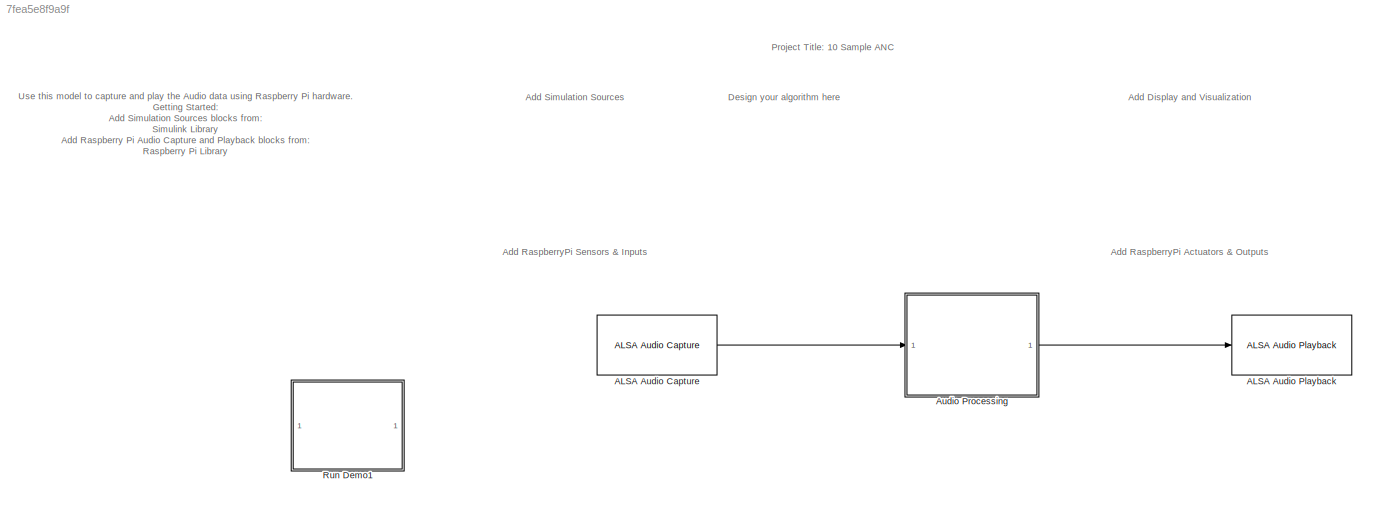
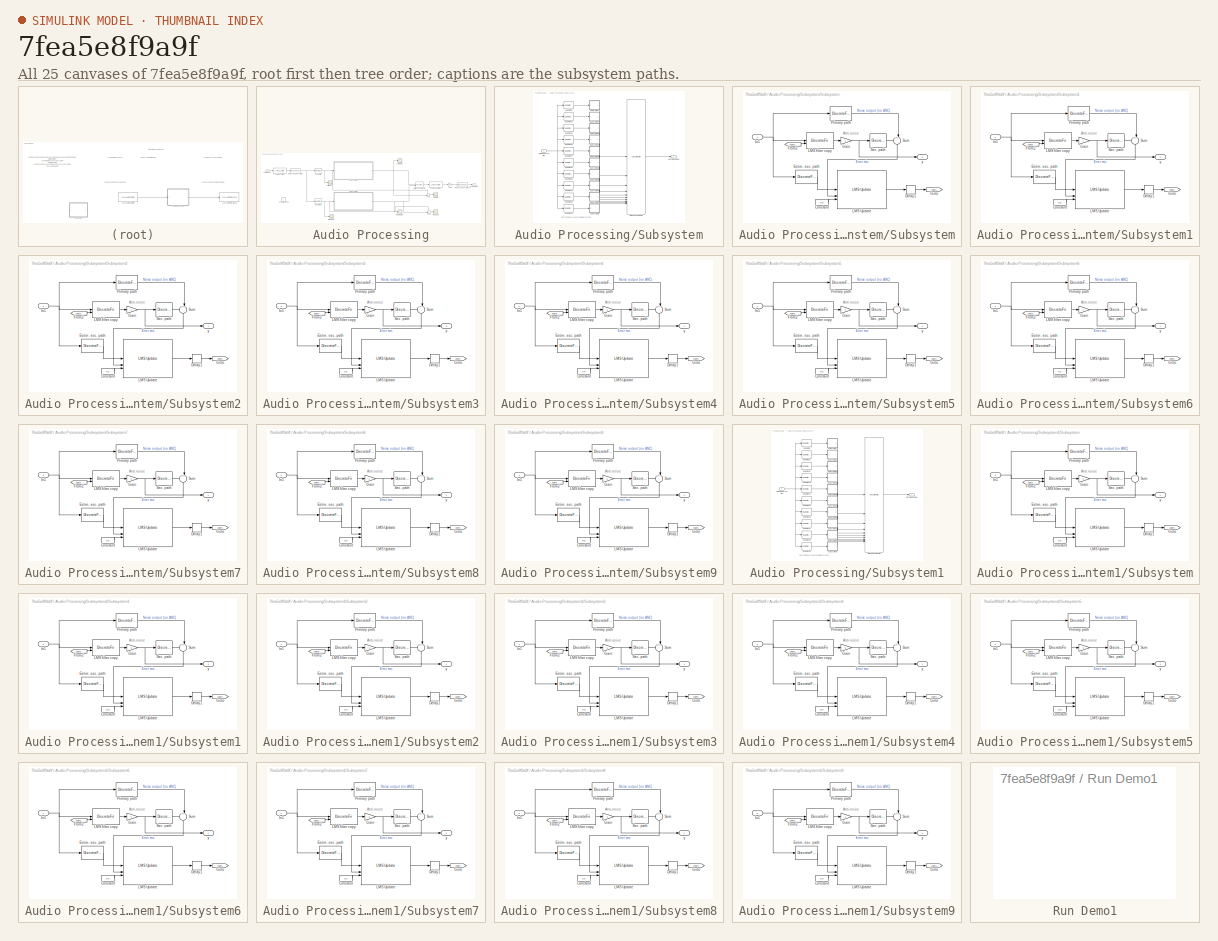
[diagram: thumbnail index - all 25 canvases of the model, root first then tree order]
MODEL slx_7fea5e8f9a9f
KIND model
CONFIG AbsTol = auto
CONFIG EnableMultiTasking = off
CONFIG FixedStep = auto
CONFIG MaxStep = auto
CONFIG MinStep = auto
CONFIG RelTol = 1e-3
CONFIG SampleTimeConstraint = Unconstrained
CONFIG SolverName = FixedStepAuto
CONFIG StartTime = 0.0
CONFIG StopTime = inf
WORKSPACE source: mxarray member
WORKSPACE SpF = 10
BLOCK [Reference] ALSA Audio Capture  REF=raspberrypiAVlib/ALSA Audio Capture
  SourceBlock = raspberrypiAVlib/ALSA Audio Capture
  SourceType = codertarget.raspi.internal.RaspiALSAAudioCapture
BLOCK [Reference] ALSA Audio Playback  REF=raspberrypiAVlib/ALSA Audio Playback
  SourceBlock = raspberrypiAVlib/ALSA Audio Playback
  SourceType = codertarget.raspi.internal.RaspiALSAAudioPlayback
BLOCK [SubSystem] Audio Processing
BLOCK [Inport] Audio Processing/AudioInput
BLOCK [Outport] Audio Processing/AudioOutput
BLOCK [DataTypeConversion] Audio Processing/Data Type Conversion
  OutDataTypeStr = double
  RndMeth = Floor
  SaturateOnIntegerOverflow = off
BLOCK [DataTypeConversion] Audio Processing/Data Type Conversion1
  LockScale = on
  OutDataTypeStr = int16
  RndMeth = Floor
  SaturateOnIntegerOverflow = off
BLOCK [Gain] Audio Processing/Gain
  Commented = through
  Gain = -1000
BLOCK [Scope] Audio Processing/Left Input
  Floating = off
  NumInputPorts = 1
  ScopeSpecificationString = Simulink.scopes.TimeScopeBlockCfg('CurrentConfiguration', extmgr.ConfigurationSet(extmgr.Configuration('Core','General UI',true),extmgr.Configuration('Core','Source UI',true),extmgr.Configuration('Sources','WiredSimulink',true,'DataLoggingVariableName','ScopeData1'),extmgr.Configuration('Visuals','Time Domain',true,'SerializedDisplays',{struct('MinYLimReal','-16660.00000','MaxYLimReal','16870.0000...<+1629ch>
BLOCK [Scope] Audio Processing/Left Output
  Floating = off
  NumInputPorts = 1
  ScopeSpecificationString = Simulink.scopes.TimeScopeBlockCfg('CurrentConfiguration', extmgr.ConfigurationSet(extmgr.Configuration('Core','General UI',true),extmgr.Configuration('Core','Source UI',true),extmgr.Configuration('Sources','WiredSimulink',true,'DataLoggingVariableName','ScopeData4'),extmgr.Configuration('Visuals','Time Domain',true,'SerializedDisplays',{struct('MinYLimReal','-16865.39476','MaxYLimReal','16671.5305...<+1628ch>
BLOCK [Scope] Audio Processing/Left Sum
  Floating = off
  NumInputPorts = 1
  ScopeSpecificationString = Simulink.scopes.TimeScopeBlockCfg('CurrentConfiguration', extmgr.ConfigurationSet(extmgr.Configuration('Core','General UI',true),extmgr.Configuration('Core','Source UI',true),extmgr.Configuration('Sources','WiredSimulink',true,'DataLoggingVariableName','ScopeData1'),extmgr.Configuration('Visuals','Time Domain',true,'SerializedDisplays',{struct('MinYLimReal','-781.17447','MaxYLimReal','1170.1305','...<+1553ch>
BLOCK [Reference] Audio Processing/Lowpass Filter  REF=dspfdesign/Lowpass Filter
  Commented = through
  SourceBlock = dspfdesign/Lowpass Filter
  SourceType = dsp.simulink.LowpassFilter
BLOCK [Reference] Audio Processing/Lowpass Filter1  REF=dspfdesign/Lowpass Filter
  Commented = through
  SourceBlock = dspfdesign/Lowpass Filter
  SourceType = dsp.simulink.LowpassFilter
BLOCK [Concatenate] Audio Processing/Matrix Concatenate
  ConcatenateDimension = 2
  Mode = Multidimensional array
BLOCK [Scope] Audio Processing/Right Input
  Floating = off
  NumInputPorts = 1
  ScopeSpecificationString = Simulink.scopes.TimeScopeBlockCfg('CurrentConfiguration', extmgr.ConfigurationSet(extmgr.Configuration('Core','General UI',true),extmgr.Configuration('Core','Source UI',true),extmgr.Configuration('Sources','WiredSimulink',true,'DataLoggingVariableName','ScopeData2'),extmgr.Configuration('Visuals','Time Domain',true,'SerializedDisplays',{struct('MinYLimReal','-16650.875','MaxYLimReal','16817.875','...<+1656ch>
BLOCK [Scope] Audio Processing/Right Output
  Floating = off
  NumInputPorts = 1
  ScopeSpecificationString = Simulink.scopes.TimeScopeBlockCfg('CurrentConfiguration', extmgr.ConfigurationSet(extmgr.Configuration('Core','General UI',true),extmgr.Configuration('Core','Source UI',true),extmgr.Configuration('Sources','WiredSimulink',true,'DataLoggingVariableName','ScopeData3'),extmgr.Configuration('Visuals','Time Domain',true,'SerializedDisplays',{struct('MinYLimReal','-16815.15065','MaxYLimReal','16658.6113...<+1665ch>
BLOCK [Scope] Audio Processing/Right Sum
  Floating = off
  NumInputPorts = 1
  ScopeSpecificationString = Simulink.scopes.TimeScopeBlockCfg('CurrentConfiguration', extmgr.ConfigurationSet(extmgr.Configuration('Core','General UI',true),extmgr.Configuration('Core','Source UI',true),extmgr.Configuration('Sources','WiredSimulink',true,'DataLoggingVariableName','ScopeData2'),extmgr.Configuration('Visuals','Time Domain',true,'SerializedDisplays',{struct('MinYLimReal','-684.00000','MaxYLimReal','596.00000','...<+1565ch>
BLOCK [Reference] Audio Processing/Submatrix  REF=matrix_library/Submatrix
  LibrarySourceBlock = simulink/Matrix\nOperations/Submatrix
  SourceBlock = matrix_library/Submatrix
  SourceType = Submatrix
BLOCK [Reference] Audio Processing/Submatrix1  REF=matrix_library/Submatrix
  LibrarySourceBlock = simulink/Matrix\nOperations/Submatrix
  SourceBlock = matrix_library/Submatrix
  SourceType = Submatrix
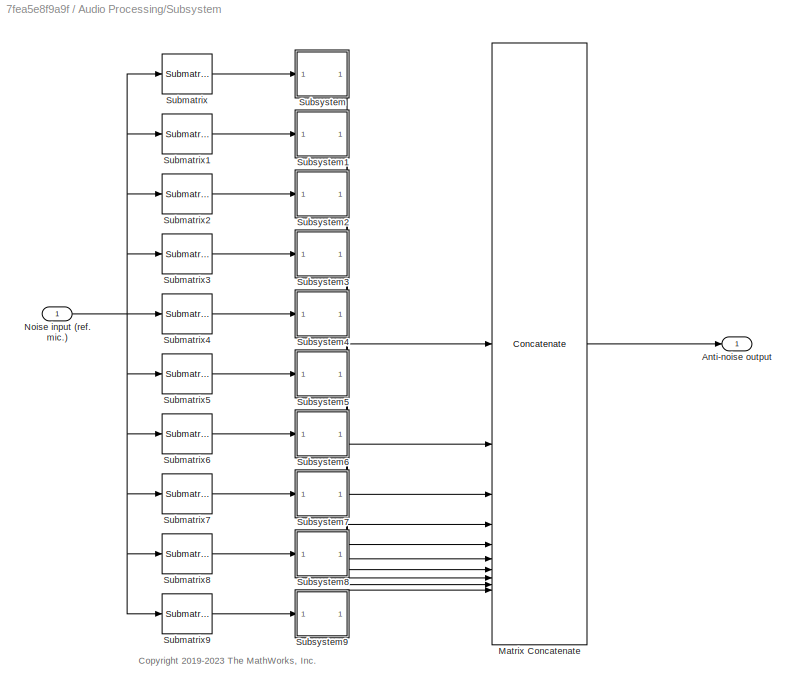
BLOCK [SubSystem] Audio Processing/Subsystem
  TreatAsAtomicUnit = on
BLOCK [Outport] Audio Processing/Subsystem/Anti-noise output
BLOCK [Concatenate] Audio Processing/Subsystem/Matrix Concatenate
  Mode = Multidimensional array
  NumInputs = 10
BLOCK [Inport] Audio Processing/Subsystem/Noise input (ref. mic.)
BLOCK [Reference] Audio Processing/Subsystem/Submatrix  REF=matrix_library/Submatrix
  LibrarySourceBlock = simulink/Matrix\nOperations/Submatrix
  SourceBlock = matrix_library/Submatrix
  SourceType = Submatrix
BLOCK [Reference] Audio Processing/Subsystem/Submatrix1  REF=matrix_library/Submatrix
  LibrarySourceBlock = simulink/Matrix\nOperations/Submatrix
  SourceBlock = matrix_library/Submatrix
  SourceType = Submatrix
BLOCK [Reference] Audio Processing/Subsystem/Submatrix2  REF=matrix_library/Submatrix
  LibrarySourceBlock = simulink/Matrix\nOperations/Submatrix
  SourceBlock = matrix_library/Submatrix
  SourceType = Submatrix
BLOCK [Reference] Audio Processing/Subsystem/Submatrix3  REF=matrix_library/Submatrix
  LibrarySourceBlock = simulink/Matrix\nOperations/Submatrix
  SourceBlock = matrix_library/Submatrix
  SourceType = Submatrix
BLOCK [Reference] Audio Processing/Subsystem/Submatrix4  REF=matrix_library/Submatrix
  LibrarySourceBlock = simulink/Matrix\nOperations/Submatrix
  SourceBlock = matrix_library/Submatrix
  SourceType = Submatrix
BLOCK [Reference] Audio Processing/Subsystem/Submatrix5  REF=matrix_library/Submatrix
  LibrarySourceBlock = simulink/Matrix\nOperations/Submatrix
  SourceBlock = matrix_library/Submatrix
  SourceType = Submatrix
BLOCK [Reference] Audio Processing/Subsystem/Submatrix6  REF=matrix_library/Submatrix
  LibrarySourceBlock = simulink/Matrix\nOperations/Submatrix
  SourceBlock = matrix_library/Submatrix
  SourceType = Submatrix
BLOCK [Reference] Audio Processing/Subsystem/Submatrix7  REF=matrix_library/Submatrix
  LibrarySourceBlock = simulink/Matrix\nOperations/Submatrix
  SourceBlock = matrix_library/Submatrix
  SourceType = Submatrix
BLOCK [Reference] Audio Processing/Subsystem/Submatrix8  REF=matrix_library/Submatrix
  LibrarySourceBlock = simulink/Matrix\nOperations/Submatrix
  SourceBlock = matrix_library/Submatrix
  SourceType = Submatrix
BLOCK [Reference] Audio Processing/Subsystem/Submatrix9  REF=matrix_library/Submatrix
  LibrarySourceBlock = simulink/Matrix\nOperations/Submatrix
  SourceBlock = matrix_library/Submatrix
  SourceType = Submatrix
BLOCK [SubSystem] Audio Processing/Subsystem/Subsystem
BLOCK [Constant] Audio Processing/Subsystem/Subsystem/Constant
  Value = 0.5
BLOCK [Delay] Audio Processing/Subsystem/Subsystem/Delay1
  DelayLength = 1
  InputPortMap = u0
BLOCK [DiscreteFir] Audio Processing/Subsystem/Subsystem/Estim. sec. path
  Coefficients = [0.466  0.533  -0.257  -0.274  -0.231  -0.175]
  Commented = through
  InputPortMap = u0
  OutputPortMap = o0
BLOCK [From] Audio Processing/Subsystem/Subsystem/From2
  GotoTag = coefs
BLOCK [Gain] Audio Processing/Subsystem/Subsystem/Gain
  Gain = -1
BLOCK [Goto] Audio Processing/Subsystem/Subsystem/Goto
  GotoTag = coefs
BLOCK [Inport] Audio Processing/Subsystem/Subsystem/In1
BLOCK [Reference] Audio Processing/Subsystem/Subsystem/LMS Update  REF=dspadpt3/LMS Update
  SourceBlock = dspadpt3/LMS Update
  SourceType = dsp.simulink.LMSUpdate
BLOCK [DiscreteFir] Audio Processing/Subsystem/Subsystem/LMS filter copy
  CoefSource = Input port
  InputPortMap = u0,u1
  OutputPortMap = o0
BLOCK [DiscreteFir] Audio Processing/Subsystem/Subsystem/Primary path
  Coefficients = conv([0.5 0.5 -.3 -.3 -.2 -.2],[.1 -.1 .2 -.2 .3 -.3 .15 -.15])
  Commented = through
  InputPortMap = u0
  OutputPortMap = o0
BLOCK [DiscreteFir] Audio Processing/Subsystem/Subsystem/Sec. path
  Coefficients = [0.5 0.5 -.3 -.3 -.2 -.2]
  Commented = through
  InputPortMap = u0
  OutputPortMap = o0
BLOCK [Sum] Audio Processing/Subsystem/Subsystem/Sum
  Inputs = ++|
  NameLocation = left
BLOCK [Outport] Audio Processing/Subsystem/Subsystem/y
BLOCK [SubSystem] Audio Processing/Subsystem/Subsystem1
BLOCK [Constant] Audio Processing/Subsystem/Subsystem1/Constant
  Value = 0.5
BLOCK [Delay] Audio Processing/Subsystem/Subsystem1/Delay1
  DelayLength = 1
  InputPortMap = u0
BLOCK [DiscreteFir] Audio Processing/Subsystem/Subsystem1/Estim. sec. path
  Coefficients = [0.466  0.533  -0.257  -0.274  -0.231  -0.175]
  Commented = through
  InputPortMap = u0
  OutputPortMap = o0
BLOCK [From] Audio Processing/Subsystem/Subsystem1/From2
  GotoTag = coefs
BLOCK [Gain] Audio Processing/Subsystem/Subsystem1/Gain
  Gain = -1
BLOCK [Goto] Audio Processing/Subsystem/Subsystem1/Goto
  GotoTag = coefs
BLOCK [Inport] Audio Processing/Subsystem/Subsystem1/In1
BLOCK [Reference] Audio Processing/Subsystem/Subsystem1/LMS Update  REF=dspadpt3/LMS Update
  SourceBlock = dspadpt3/LMS Update
  SourceType = dsp.simulink.LMSUpdate
BLOCK [DiscreteFir] Audio Processing/Subsystem/Subsystem1/LMS filter copy
  CoefSource = Input port
  InputPortMap = u0,u1
  OutputPortMap = o0
BLOCK [DiscreteFir] Audio Processing/Subsystem/Subsystem1/Primary path
  Coefficients = conv([0.5 0.5 -.3 -.3 -.2 -.2],[.1 -.1 .2 -.2 .3 -.3 .15 -.15])
  Commented = through
  InputPortMap = u0
  OutputPortMap = o0
BLOCK [DiscreteFir] Audio Processing/Subsystem/Subsystem1/Sec. path
  Coefficients = [0.5 0.5 -.3 -.3 -.2 -.2]
  Commented = through
  InputPortMap = u0
  OutputPortMap = o0
BLOCK [Sum] Audio Processing/Subsystem/Subsystem1/Sum
  Inputs = ++|
  NameLocation = left
BLOCK [Outport] Audio Processing/Subsystem/Subsystem1/y
BLOCK [SubSystem] Audio Processing/Subsystem/Subsystem2
BLOCK [Constant] Audio Processing/Subsystem/Subsystem2/Constant
  Value = 0.5
BLOCK [Delay] Audio Processing/Subsystem/Subsystem2/Delay1
  DelayLength = 1
  InputPortMap = u0
BLOCK [DiscreteFir] Audio Processing/Subsystem/Subsystem2/Estim. sec. path
  Coefficients = [0.466  0.533  -0.257  -0.274  -0.231  -0.175]
  Commented = through
  InputPortMap = u0
  OutputPortMap = o0
BLOCK [From] Audio Processing/Subsystem/Subsystem2/From2
  GotoTag = coefs
BLOCK [Gain] Audio Processing/Subsystem/Subsystem2/Gain
  Gain = -1
BLOCK [Goto] Audio Processing/Subsystem/Subsystem2/Goto
  GotoTag = coefs
BLOCK [Inport] Audio Processing/Subsystem/Subsystem2/In1
BLOCK [Reference] Audio Processing/Subsystem/Subsystem2/LMS Update  REF=dspadpt3/LMS Update
  SourceBlock = dspadpt3/LMS Update
  SourceType = dsp.simulink.LMSUpdate
BLOCK [DiscreteFir] Audio Processing/Subsystem/Subsystem2/LMS filter copy
  CoefSource = Input port
  InputPortMap = u0,u1
  OutputPortMap = o0
BLOCK [DiscreteFir] Audio Processing/Subsystem/Subsystem2/Primary path
  Coefficients = conv([0.5 0.5 -.3 -.3 -.2 -.2],[.1 -.1 .2 -.2 .3 -.3 .15 -.15])
  Commented = through
  InputPortMap = u0
  OutputPortMap = o0
BLOCK [DiscreteFir] Audio Processing/Subsystem/Subsystem2/Sec. path
  Coefficients = [0.5 0.5 -.3 -.3 -.2 -.2]
  Commented = through
  InputPortMap = u0
  OutputPortMap = o0
BLOCK [Sum] Audio Processing/Subsystem/Subsystem2/Sum
  Inputs = ++|
  NameLocation = left
BLOCK [Outport] Audio Processing/Subsystem/Subsystem2/y
BLOCK [SubSystem] Audio Processing/Subsystem/Subsystem3
BLOCK [Constant] Audio Processing/Subsystem/Subsystem3/Constant
  Value = 0.5
BLOCK [Delay] Audio Processing/Subsystem/Subsystem3/Delay1
  DelayLength = 1
  InputPortMap = u0
BLOCK [DiscreteFir] Audio Processing/Subsystem/Subsystem3/Estim. sec. path
  Coefficients = [0.466  0.533  -0.257  -0.274  -0.231  -0.175]
  Commented = through
  InputPortMap = u0
  OutputPortMap = o0
BLOCK [From] Audio Processing/Subsystem/Subsystem3/From2
  GotoTag = coefs
BLOCK [Gain] Audio Processing/Subsystem/Subsystem3/Gain
  Gain = -1
BLOCK [Goto] Audio Processing/Subsystem/Subsystem3/Goto
  GotoTag = coefs
BLOCK [Inport] Audio Processing/Subsystem/Subsystem3/In1
BLOCK [Reference] Audio Processing/Subsystem/Subsystem3/LMS Update  REF=dspadpt3/LMS Update
  SourceBlock = dspadpt3/LMS Update
  SourceType = dsp.simulink.LMSUpdate
BLOCK [DiscreteFir] Audio Processing/Subsystem/Subsystem3/LMS filter copy
  CoefSource = Input port
  InputPortMap = u0,u1
  OutputPortMap = o0
BLOCK [DiscreteFir] Audio Processing/Subsystem/Subsystem3/Primary path
  Coefficients = conv([0.5 0.5 -.3 -.3 -.2 -.2],[.1 -.1 .2 -.2 .3 -.3 .15 -.15])
  Commented = through
  InputPortMap = u0
  OutputPortMap = o0
BLOCK [DiscreteFir] Audio Processing/Subsystem/Subsystem3/Sec. path
  Coefficients = [0.5 0.5 -.3 -.3 -.2 -.2]
  Commented = through
  InputPortMap = u0
  OutputPortMap = o0
BLOCK [Sum] Audio Processing/Subsystem/Subsystem3/Sum
  Inputs = ++|
  NameLocation = left
BLOCK [Outport] Audio Processing/Subsystem/Subsystem3/y
BLOCK [SubSystem] Audio Processing/Subsystem/Subsystem4
BLOCK [Constant] Audio Processing/Subsystem/Subsystem4/Constant
  Value = 0.5
BLOCK [Delay] Audio Processing/Subsystem/Subsystem4/Delay1
  DelayLength = 1
  InputPortMap = u0
BLOCK [DiscreteFir] Audio Processing/Subsystem/Subsystem4/Estim. sec. path
  Coefficients = [0.466  0.533  -0.257  -0.274  -0.231  -0.175]
  Commented = through
  InputPortMap = u0
  OutputPortMap = o0
BLOCK [From] Audio Processing/Subsystem/Subsystem4/From2
  GotoTag = coefs
BLOCK [Gain] Audio Processing/Subsystem/Subsystem4/Gain
  Gain = -1
BLOCK [Goto] Audio Processing/Subsystem/Subsystem4/Goto
  GotoTag = coefs
BLOCK [Inport] Audio Processing/Subsystem/Subsystem4/In1
BLOCK [Reference] Audio Processing/Subsystem/Subsystem4/LMS Update  REF=dspadpt3/LMS Update
  SourceBlock = dspadpt3/LMS Update
  SourceType = dsp.simulink.LMSUpdate
BLOCK [DiscreteFir] Audio Processing/Subsystem/Subsystem4/LMS filter copy
  CoefSource = Input port
  InputPortMap = u0,u1
  OutputPortMap = o0
BLOCK [DiscreteFir] Audio Processing/Subsystem/Subsystem4/Primary path
  Coefficients = conv([0.5 0.5 -.3 -.3 -.2 -.2],[.1 -.1 .2 -.2 .3 -.3 .15 -.15])
  Commented = through
  InputPortMap = u0
  OutputPortMap = o0
BLOCK [DiscreteFir] Audio Processing/Subsystem/Subsystem4/Sec. path
  Coefficients = [0.5 0.5 -.3 -.3 -.2 -.2]
  Commented = through
  InputPortMap = u0
  OutputPortMap = o0
BLOCK [Sum] Audio Processing/Subsystem/Subsystem4/Sum
  Inputs = ++|
  NameLocation = left
BLOCK [Outport] Audio Processing/Subsystem/Subsystem4/y
BLOCK [SubSystem] Audio Processing/Subsystem/Subsystem5
BLOCK [Constant] Audio Processing/Subsystem/Subsystem5/Constant
  Value = 0.5
BLOCK [Delay] Audio Processing/Subsystem/Subsystem5/Delay1
  DelayLength = 1
  InputPortMap = u0
BLOCK [DiscreteFir] Audio Processing/Subsystem/Subsystem5/Estim. sec. path
  Coefficients = [0.466  0.533  -0.257  -0.274  -0.231  -0.175]
  Commented = through
  InputPortMap = u0
  OutputPortMap = o0
BLOCK [From] Audio Processing/Subsystem/Subsystem5/From2
  GotoTag = coefs
BLOCK [Gain] Audio Processing/Subsystem/Subsystem5/Gain
  Gain = -1
BLOCK [Goto] Audio Processing/Subsystem/Subsystem5/Goto
  GotoTag = coefs
BLOCK [Inport] Audio Processing/Subsystem/Subsystem5/In1
BLOCK [Reference] Audio Processing/Subsystem/Subsystem5/LMS Update  REF=dspadpt3/LMS Update
  SourceBlock = dspadpt3/LMS Update
  SourceType = dsp.simulink.LMSUpdate
BLOCK [DiscreteFir] Audio Processing/Subsystem/Subsystem5/LMS filter copy
  CoefSource = Input port
  InputPortMap = u0,u1
  OutputPortMap = o0
BLOCK [DiscreteFir] Audio Processing/Subsystem/Subsystem5/Primary path
  Coefficients = conv([0.5 0.5 -.3 -.3 -.2 -.2],[.1 -.1 .2 -.2 .3 -.3 .15 -.15])
  Commented = through
  InputPortMap = u0
  OutputPortMap = o0
BLOCK [DiscreteFir] Audio Processing/Subsystem/Subsystem5/Sec. path
  Coefficients = [0.5 0.5 -.3 -.3 -.2 -.2]
  Commented = through
  InputPortMap = u0
  OutputPortMap = o0
BLOCK [Sum] Audio Processing/Subsystem/Subsystem5/Sum
  Inputs = ++|
  NameLocation = left
BLOCK [Outport] Audio Processing/Subsystem/Subsystem5/y
BLOCK [SubSystem] Audio Processing/Subsystem/Subsystem6
BLOCK [Constant] Audio Processing/Subsystem/Subsystem6/Constant
  Value = 0.5
BLOCK [Delay] Audio Processing/Subsystem/Subsystem6/Delay1
  DelayLength = 1
  InputPortMap = u0
BLOCK [DiscreteFir] Audio Processing/Subsystem/Subsystem6/Estim. sec. path
  Coefficients = [0.466  0.533  -0.257  -0.274  -0.231  -0.175]
  Commented = through
  InputPortMap = u0
  OutputPortMap = o0
BLOCK [From] Audio Processing/Subsystem/Subsystem6/From2
  GotoTag = coefs
BLOCK [Gain] Audio Processing/Subsystem/Subsystem6/Gain
  Gain = -1
BLOCK [Goto] Audio Processing/Subsystem/Subsystem6/Goto
  GotoTag = coefs
BLOCK [Inport] Audio Processing/Subsystem/Subsystem6/In1
BLOCK [Reference] Audio Processing/Subsystem/Subsystem6/LMS Update  REF=dspadpt3/LMS Update
  SourceBlock = dspadpt3/LMS Update
  SourceType = dsp.simulink.LMSUpdate
BLOCK [DiscreteFir] Audio Processing/Subsystem/Subsystem6/LMS filter copy
  CoefSource = Input port
  InputPortMap = u0,u1
  OutputPortMap = o0
BLOCK [DiscreteFir] Audio Processing/Subsystem/Subsystem6/Primary path
  Coefficients = conv([0.5 0.5 -.3 -.3 -.2 -.2],[.1 -.1 .2 -.2 .3 -.3 .15 -.15])
  Commented = through
  InputPortMap = u0
  OutputPortMap = o0
BLOCK [DiscreteFir] Audio Processing/Subsystem/Subsystem6/Sec. path
  Coefficients = [0.5 0.5 -.3 -.3 -.2 -.2]
  Commented = through
  InputPortMap = u0
  OutputPortMap = o0
BLOCK [Sum] Audio Processing/Subsystem/Subsystem6/Sum
  Inputs = ++|
  NameLocation = left
BLOCK [Outport] Audio Processing/Subsystem/Subsystem6/y
BLOCK [SubSystem] Audio Processing/Subsystem/Subsystem7
BLOCK [Constant] Audio Processing/Subsystem/Subsystem7/Constant
  Value = 0.5
BLOCK [Delay] Audio Processing/Subsystem/Subsystem7/Delay1
  DelayLength = 1
  InputPortMap = u0
BLOCK [DiscreteFir] Audio Processing/Subsystem/Subsystem7/Estim. sec. path
  Coefficients = [0.466  0.533  -0.257  -0.274  -0.231  -0.175]
  Commented = through
  InputPortMap = u0
  OutputPortMap = o0
BLOCK [From] Audio Processing/Subsystem/Subsystem7/From2
  GotoTag = coefs
BLOCK [Gain] Audio Processing/Subsystem/Subsystem7/Gain
  Gain = -1
BLOCK [Goto] Audio Processing/Subsystem/Subsystem7/Goto
  GotoTag = coefs
BLOCK [Inport] Audio Processing/Subsystem/Subsystem7/In1
BLOCK [Reference] Audio Processing/Subsystem/Subsystem7/LMS Update  REF=dspadpt3/LMS Update
  SourceBlock = dspadpt3/LMS Update
  SourceType = dsp.simulink.LMSUpdate
BLOCK [DiscreteFir] Audio Processing/Subsystem/Subsystem7/LMS filter copy
  CoefSource = Input port
  InputPortMap = u0,u1
  OutputPortMap = o0
BLOCK [DiscreteFir] Audio Processing/Subsystem/Subsystem7/Primary path
  Coefficients = conv([0.5 0.5 -.3 -.3 -.2 -.2],[.1 -.1 .2 -.2 .3 -.3 .15 -.15])
  Commented = through
  InputPortMap = u0
  OutputPortMap = o0
BLOCK [DiscreteFir] Audio Processing/Subsystem/Subsystem7/Sec. path
  Coefficients = [0.5 0.5 -.3 -.3 -.2 -.2]
  Commented = through
  InputPortMap = u0
  OutputPortMap = o0
BLOCK [Sum] Audio Processing/Subsystem/Subsystem7/Sum
  Inputs = ++|
  NameLocation = left
BLOCK [Outport] Audio Processing/Subsystem/Subsystem7/y
BLOCK [SubSystem] Audio Processing/Subsystem/Subsystem8
BLOCK [Constant] Audio Processing/Subsystem/Subsystem8/Constant
  Value = 0.5
BLOCK [Delay] Audio Processing/Subsystem/Subsystem8/Delay1
  DelayLength = 1
  InputPortMap = u0
BLOCK [DiscreteFir] Audio Processing/Subsystem/Subsystem8/Estim. sec. path
  Coefficients = [0.466  0.533  -0.257  -0.274  -0.231  -0.175]
  Commented = through
  InputPortMap = u0
  OutputPortMap = o0
BLOCK [From] Audio Processing/Subsystem/Subsystem8/From2
  GotoTag = coefs
BLOCK [Gain] Audio Processing/Subsystem/Subsystem8/Gain
  Gain = -1
BLOCK [Goto] Audio Processing/Subsystem/Subsystem8/Goto
  GotoTag = coefs
BLOCK [Inport] Audio Processing/Subsystem/Subsystem8/In1
BLOCK [Reference] Audio Processing/Subsystem/Subsystem8/LMS Update  REF=dspadpt3/LMS Update
  SourceBlock = dspadpt3/LMS Update
  SourceType = dsp.simulink.LMSUpdate
BLOCK [DiscreteFir] Audio Processing/Subsystem/Subsystem8/LMS filter copy
  CoefSource = Input port
  InputPortMap = u0,u1
  OutputPortMap = o0
BLOCK [DiscreteFir] Audio Processing/Subsystem/Subsystem8/Primary path
  Coefficients = conv([0.5 0.5 -.3 -.3 -.2 -.2],[.1 -.1 .2 -.2 .3 -.3 .15 -.15])
  Commented = through
  InputPortMap = u0
  OutputPortMap = o0
BLOCK [DiscreteFir] Audio Processing/Subsystem/Subsystem8/Sec. path
  Coefficients = [0.5 0.5 -.3 -.3 -.2 -.2]
  Commented = through
  InputPortMap = u0
  OutputPortMap = o0
BLOCK [Sum] Audio Processing/Subsystem/Subsystem8/Sum
  Inputs = ++|
  NameLocation = left
BLOCK [Outport] Audio Processing/Subsystem/Subsystem8/y
BLOCK [SubSystem] Audio Processing/Subsystem/Subsystem9
BLOCK [Constant] Audio Processing/Subsystem/Subsystem9/Constant
  Value = 0.5
BLOCK [Delay] Audio Processing/Subsystem/Subsystem9/Delay1
  DelayLength = 1
  InputPortMap = u0
BLOCK [DiscreteFir] Audio Processing/Subsystem/Subsystem9/Estim. sec. path
  Coefficients = [0.466  0.533  -0.257  -0.274  -0.231  -0.175]
  Commented = through
  InputPortMap = u0
  OutputPortMap = o0
BLOCK [From] Audio Processing/Subsystem/Subsystem9/From2
  GotoTag = coefs
BLOCK [Gain] Audio Processing/Subsystem/Subsystem9/Gain
  Gain = -1
BLOCK [Goto] Audio Processing/Subsystem/Subsystem9/Goto
  GotoTag = coefs
BLOCK [Inport] Audio Processing/Subsystem/Subsystem9/In1
BLOCK [Reference] Audio Processing/Subsystem/Subsystem9/LMS Update  REF=dspadpt3/LMS Update
  SourceBlock = dspadpt3/LMS Update
  SourceType = dsp.simulink.LMSUpdate
BLOCK [DiscreteFir] Audio Processing/Subsystem/Subsystem9/LMS filter copy
  CoefSource = Input port
  InputPortMap = u0,u1
  OutputPortMap = o0
BLOCK [DiscreteFir] Audio Processing/Subsystem/Subsystem9/Primary path
  Coefficients = conv([0.5 0.5 -.3 -.3 -.2 -.2],[.1 -.1 .2 -.2 .3 -.3 .15 -.15])
  Commented = through
  InputPortMap = u0
  OutputPortMap = o0
BLOCK [DiscreteFir] Audio Processing/Subsystem/Subsystem9/Sec. path
  Coefficients = [0.5 0.5 -.3 -.3 -.2 -.2]
  Commented = through
  InputPortMap = u0
  OutputPortMap = o0
BLOCK [Sum] Audio Processing/Subsystem/Subsystem9/Sum
  Inputs = ++|
  NameLocation = left
BLOCK [Outport] Audio Processing/Subsystem/Subsystem9/y
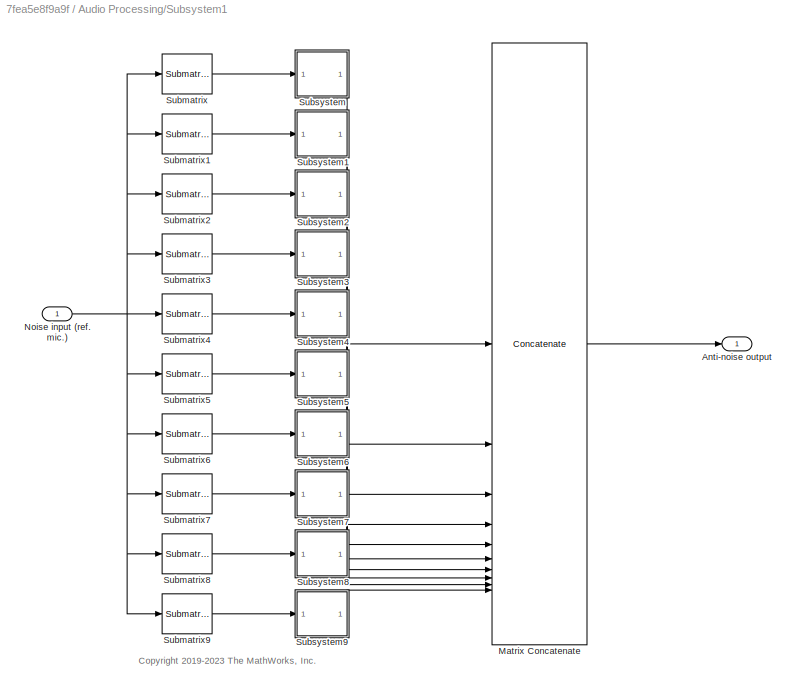
BLOCK [SubSystem] Audio Processing/Subsystem1
  TreatAsAtomicUnit = on
BLOCK [Outport] Audio Processing/Subsystem1/Anti-noise output
BLOCK [Concatenate] Audio Processing/Subsystem1/Matrix Concatenate
  Mode = Multidimensional array
  NumInputs = 10
BLOCK [Inport] Audio Processing/Subsystem1/Noise input (ref. mic.)
BLOCK [Reference] Audio Processing/Subsystem1/Submatrix  REF=matrix_library/Submatrix
  LibrarySourceBlock = simulink/Matrix\nOperations/Submatrix
  SourceBlock = matrix_library/Submatrix
  SourceType = Submatrix
BLOCK [Reference] Audio Processing/Subsystem1/Submatrix1  REF=matrix_library/Submatrix
  LibrarySourceBlock = simulink/Matrix\nOperations/Submatrix
  SourceBlock = matrix_library/Submatrix
  SourceType = Submatrix
BLOCK [Reference] Audio Processing/Subsystem1/Submatrix2  REF=matrix_library/Submatrix
  LibrarySourceBlock = simulink/Matrix\nOperations/Submatrix
  SourceBlock = matrix_library/Submatrix
  SourceType = Submatrix
BLOCK [Reference] Audio Processing/Subsystem1/Submatrix3  REF=matrix_library/Submatrix
  LibrarySourceBlock = simulink/Matrix\nOperations/Submatrix
  SourceBlock = matrix_library/Submatrix
  SourceType = Submatrix
BLOCK [Reference] Audio Processing/Subsystem1/Submatrix4  REF=matrix_library/Submatrix
  LibrarySourceBlock = simulink/Matrix\nOperations/Submatrix
  SourceBlock = matrix_library/Submatrix
  SourceType = Submatrix
BLOCK [Reference] Audio Processing/Subsystem1/Submatrix5  REF=matrix_library/Submatrix
  LibrarySourceBlock = simulink/Matrix\nOperations/Submatrix
  SourceBlock = matrix_library/Submatrix
  SourceType = Submatrix
BLOCK [Reference] Audio Processing/Subsystem1/Submatrix6  REF=matrix_library/Submatrix
  LibrarySourceBlock = simulink/Matrix\nOperations/Submatrix
  SourceBlock = matrix_library/Submatrix
  SourceType = Submatrix
BLOCK [Reference] Audio Processing/Subsystem1/Submatrix7  REF=matrix_library/Submatrix
  LibrarySourceBlock = simulink/Matrix\nOperations/Submatrix
  SourceBlock = matrix_library/Submatrix
  SourceType = Submatrix
BLOCK [Reference] Audio Processing/Subsystem1/Submatrix8  REF=matrix_library/Submatrix
  LibrarySourceBlock = simulink/Matrix\nOperations/Submatrix
  SourceBlock = matrix_library/Submatrix
  SourceType = Submatrix
BLOCK [Reference] Audio Processing/Subsystem1/Submatrix9  REF=matrix_library/Submatrix
  LibrarySourceBlock = simulink/Matrix\nOperations/Submatrix
  SourceBlock = matrix_library/Submatrix
  SourceType = Submatrix
BLOCK [SubSystem] Audio Processing/Subsystem1/Subsystem
BLOCK [Constant] Audio Processing/Subsystem1/Subsystem/Constant
  Value = 0.5
BLOCK [Delay] Audio Processing/Subsystem1/Subsystem/Delay1
  DelayLength = 1
  InputPortMap = u0
BLOCK [DiscreteFir] Audio Processing/Subsystem1/Subsystem/Estim. sec. path
  Coefficients = [0.466  0.533  -0.257  -0.274  -0.231  -0.175]
  Commented = through
  InputPortMap = u0
  OutputPortMap = o0
BLOCK [From] Audio Processing/Subsystem1/Subsystem/From2
  GotoTag = coefs
BLOCK [Gain] Audio Processing/Subsystem1/Subsystem/Gain
  Gain = -1
BLOCK [Goto] Audio Processing/Subsystem1/Subsystem/Goto
  GotoTag = coefs
BLOCK [Inport] Audio Processing/Subsystem1/Subsystem/In1
BLOCK [Reference] Audio Processing/Subsystem1/Subsystem/LMS Update  REF=dspadpt3/LMS Update
  SourceBlock = dspadpt3/LMS Update
  SourceType = dsp.simulink.LMSUpdate
BLOCK [DiscreteFir] Audio Processing/Subsystem1/Subsystem/LMS filter copy
  CoefSource = Input port
  InputPortMap = u0,u1
  OutputPortMap = o0
BLOCK [DiscreteFir] Audio Processing/Subsystem1/Subsystem/Primary path
  Coefficients = conv([0.5 0.5 -.3 -.3 -.2 -.2],[.1 -.1 .2 -.2 .3 -.3 .15 -.15])
  Commented = through
  InputPortMap = u0
  OutputPortMap = o0
BLOCK [DiscreteFir] Audio Processing/Subsystem1/Subsystem/Sec. path
  Coefficients = [0.5 0.5 -.3 -.3 -.2 -.2]
  Commented = through
  InputPortMap = u0
  OutputPortMap = o0
BLOCK [Sum] Audio Processing/Subsystem1/Subsystem/Sum
  Inputs = ++|
  NameLocation = left
BLOCK [Outport] Audio Processing/Subsystem1/Subsystem/y
BLOCK [SubSystem] Audio Processing/Subsystem1/Subsystem1
BLOCK [Constant] Audio Processing/Subsystem1/Subsystem1/Constant
  Value = 0.5
BLOCK [Delay] Audio Processing/Subsystem1/Subsystem1/Delay1
  DelayLength = 1
  InputPortMap = u0
BLOCK [DiscreteFir] Audio Processing/Subsystem1/Subsystem1/Estim. sec. path
  Coefficients = [0.466  0.533  -0.257  -0.274  -0.231  -0.175]
  Commented = through
  InputPortMap = u0
  OutputPortMap = o0
BLOCK [From] Audio Processing/Subsystem1/Subsystem1/From2
  GotoTag = coefs
BLOCK [Gain] Audio Processing/Subsystem1/Subsystem1/Gain
  Gain = -1
BLOCK [Goto] Audio Processing/Subsystem1/Subsystem1/Goto
  GotoTag = coefs
BLOCK [Inport] Audio Processing/Subsystem1/Subsystem1/In1
BLOCK [Reference] Audio Processing/Subsystem1/Subsystem1/LMS Update  REF=dspadpt3/LMS Update
  SourceBlock = dspadpt3/LMS Update
  SourceType = dsp.simulink.LMSUpdate
BLOCK [DiscreteFir] Audio Processing/Subsystem1/Subsystem1/LMS filter copy
  CoefSource = Input port
  InputPortMap = u0,u1
  OutputPortMap = o0
BLOCK [DiscreteFir] Audio Processing/Subsystem1/Subsystem1/Primary path
  Coefficients = conv([0.5 0.5 -.3 -.3 -.2 -.2],[.1 -.1 .2 -.2 .3 -.3 .15 -.15])
  Commented = through
  InputPortMap = u0
  OutputPortMap = o0
BLOCK [DiscreteFir] Audio Processing/Subsystem1/Subsystem1/Sec. path
  Coefficients = [0.5 0.5 -.3 -.3 -.2 -.2]
  Commented = through
  InputPortMap = u0
  OutputPortMap = o0
BLOCK [Sum] Audio Processing/Subsystem1/Subsystem1/Sum
  Inputs = ++|
  NameLocation = left
BLOCK [Outport] Audio Processing/Subsystem1/Subsystem1/y
BLOCK [SubSystem] Audio Processing/Subsystem1/Subsystem2
BLOCK [Constant] Audio Processing/Subsystem1/Subsystem2/Constant
  Value = 0.5
BLOCK [Delay] Audio Processing/Subsystem1/Subsystem2/Delay1
  DelayLength = 1
  InputPortMap = u0
BLOCK [DiscreteFir] Audio Processing/Subsystem1/Subsystem2/Estim. sec. path
  Coefficients = [0.466  0.533  -0.257  -0.274  -0.231  -0.175]
  Commented = through
  InputPortMap = u0
  OutputPortMap = o0
BLOCK [From] Audio Processing/Subsystem1/Subsystem2/From2
  GotoTag = coefs
BLOCK [Gain] Audio Processing/Subsystem1/Subsystem2/Gain
  Gain = -1
BLOCK [Goto] Audio Processing/Subsystem1/Subsystem2/Goto
  GotoTag = coefs
BLOCK [Inport] Audio Processing/Subsystem1/Subsystem2/In1
BLOCK [Reference] Audio Processing/Subsystem1/Subsystem2/LMS Update  REF=dspadpt3/LMS Update
  SourceBlock = dspadpt3/LMS Update
  SourceType = dsp.simulink.LMSUpdate
BLOCK [DiscreteFir] Audio Processing/Subsystem1/Subsystem2/LMS filter copy
  CoefSource = Input port
  InputPortMap = u0,u1
  OutputPortMap = o0
BLOCK [DiscreteFir] Audio Processing/Subsystem1/Subsystem2/Primary path
  Coefficients = conv([0.5 0.5 -.3 -.3 -.2 -.2],[.1 -.1 .2 -.2 .3 -.3 .15 -.15])
  Commented = through
  InputPortMap = u0
  OutputPortMap = o0
BLOCK [DiscreteFir] Audio Processing/Subsystem1/Subsystem2/Sec. path
  Coefficients = [0.5 0.5 -.3 -.3 -.2 -.2]
  Commented = through
  InputPortMap = u0
  OutputPortMap = o0
BLOCK [Sum] Audio Processing/Subsystem1/Subsystem2/Sum
  Inputs = ++|
  NameLocation = left
BLOCK [Outport] Audio Processing/Subsystem1/Subsystem2/y
BLOCK [SubSystem] Audio Processing/Subsystem1/Subsystem3
BLOCK [Constant] Audio Processing/Subsystem1/Subsystem3/Constant
  Value = 0.5
BLOCK [Delay] Audio Processing/Subsystem1/Subsystem3/Delay1
  DelayLength = 1
  InputPortMap = u0
BLOCK [DiscreteFir] Audio Processing/Subsystem1/Subsystem3/Estim. sec. path
  Coefficients = [0.466  0.533  -0.257  -0.274  -0.231  -0.175]
  Commented = through
  InputPortMap = u0
  OutputPortMap = o0
BLOCK [From] Audio Processing/Subsystem1/Subsystem3/From2
  GotoTag = coefs
BLOCK [Gain] Audio Processing/Subsystem1/Subsystem3/Gain
  Gain = -1
BLOCK [Goto] Audio Processing/Subsystem1/Subsystem3/Goto
  GotoTag = coefs
BLOCK [Inport] Audio Processing/Subsystem1/Subsystem3/In1
BLOCK [Reference] Audio Processing/Subsystem1/Subsystem3/LMS Update  REF=dspadpt3/LMS Update
  SourceBlock = dspadpt3/LMS Update
  SourceType = dsp.simulink.LMSUpdate
BLOCK [DiscreteFir] Audio Processing/Subsystem1/Subsystem3/LMS filter copy
  CoefSource = Input port
  InputPortMap = u0,u1
  OutputPortMap = o0
BLOCK [DiscreteFir] Audio Processing/Subsystem1/Subsystem3/Primary path
  Coefficients = conv([0.5 0.5 -.3 -.3 -.2 -.2],[.1 -.1 .2 -.2 .3 -.3 .15 -.15])
  Commented = through
  InputPortMap = u0
  OutputPortMap = o0
BLOCK [DiscreteFir] Audio Processing/Subsystem1/Subsystem3/Sec. path
  Coefficients = [0.5 0.5 -.3 -.3 -.2 -.2]
  Commented = through
  InputPortMap = u0
  OutputPortMap = o0
BLOCK [Sum] Audio Processing/Subsystem1/Subsystem3/Sum
  Inputs = ++|
  NameLocation = left
BLOCK [Outport] Audio Processing/Subsystem1/Subsystem3/y
BLOCK [SubSystem] Audio Processing/Subsystem1/Subsystem4
BLOCK [Constant] Audio Processing/Subsystem1/Subsystem4/Constant
  Value = 0.5
BLOCK [Delay] Audio Processing/Subsystem1/Subsystem4/Delay1
  DelayLength = 1
  InputPortMap = u0
BLOCK [DiscreteFir] Audio Processing/Subsystem1/Subsystem4/Estim. sec. path
  Coefficients = [0.466  0.533  -0.257  -0.274  -0.231  -0.175]
  Commented = through
  InputPortMap = u0
  OutputPortMap = o0
BLOCK [From] Audio Processing/Subsystem1/Subsystem4/From2
  GotoTag = coefs
BLOCK [Gain] Audio Processing/Subsystem1/Subsystem4/Gain
  Gain = -1
BLOCK [Goto] Audio Processing/Subsystem1/Subsystem4/Goto
  GotoTag = coefs
BLOCK [Inport] Audio Processing/Subsystem1/Subsystem4/In1
BLOCK [Reference] Audio Processing/Subsystem1/Subsystem4/LMS Update  REF=dspadpt3/LMS Update
  SourceBlock = dspadpt3/LMS Update
  SourceType = dsp.simulink.LMSUpdate
BLOCK [DiscreteFir] Audio Processing/Subsystem1/Subsystem4/LMS filter copy
  CoefSource = Input port
  InputPortMap = u0,u1
  OutputPortMap = o0
BLOCK [DiscreteFir] Audio Processing/Subsystem1/Subsystem4/Primary path
  Coefficients = conv([0.5 0.5 -.3 -.3 -.2 -.2],[.1 -.1 .2 -.2 .3 -.3 .15 -.15])
  Commented = through
  InputPortMap = u0
  OutputPortMap = o0
BLOCK [DiscreteFir] Audio Processing/Subsystem1/Subsystem4/Sec. path
  Coefficients = [0.5 0.5 -.3 -.3 -.2 -.2]
  Commented = through
  InputPortMap = u0
  OutputPortMap = o0
BLOCK [Sum] Audio Processing/Subsystem1/Subsystem4/Sum
  Inputs = ++|
  NameLocation = left
BLOCK [Outport] Audio Processing/Subsystem1/Subsystem4/y
BLOCK [SubSystem] Audio Processing/Subsystem1/Subsystem5
BLOCK [Constant] Audio Processing/Subsystem1/Subsystem5/Constant
  Value = 0.5
BLOCK [Delay] Audio Processing/Subsystem1/Subsystem5/Delay1
  DelayLength = 1
  InputPortMap = u0
BLOCK [DiscreteFir] Audio Processing/Subsystem1/Subsystem5/Estim. sec. path
  Coefficients = [0.466  0.533  -0.257  -0.274  -0.231  -0.175]
  Commented = through
  InputPortMap = u0
  OutputPortMap = o0
BLOCK [From] Audio Processing/Subsystem1/Subsystem5/From2
  GotoTag = coefs
BLOCK [Gain] Audio Processing/Subsystem1/Subsystem5/Gain
  Gain = -1
BLOCK [Goto] Audio Processing/Subsystem1/Subsystem5/Goto
  GotoTag = coefs
BLOCK [Inport] Audio Processing/Subsystem1/Subsystem5/In1
BLOCK [Reference] Audio Processing/Subsystem1/Subsystem5/LMS Update  REF=dspadpt3/LMS Update
  SourceBlock = dspadpt3/LMS Update
  SourceType = dsp.simulink.LMSUpdate
BLOCK [DiscreteFir] Audio Processing/Subsystem1/Subsystem5/LMS filter copy
  CoefSource = Input port
  InputPortMap = u0,u1
  OutputPortMap = o0
BLOCK [DiscreteFir] Audio Processing/Subsystem1/Subsystem5/Primary path
  Coefficients = conv([0.5 0.5 -.3 -.3 -.2 -.2],[.1 -.1 .2 -.2 .3 -.3 .15 -.15])
  Commented = through
  InputPortMap = u0
  OutputPortMap = o0
BLOCK [DiscreteFir] Audio Processing/Subsystem1/Subsystem5/Sec. path
  Coefficients = [0.5 0.5 -.3 -.3 -.2 -.2]
  Commented = through
  InputPortMap = u0
  OutputPortMap = o0
BLOCK [Sum] Audio Processing/Subsystem1/Subsystem5/Sum
  Inputs = ++|
  NameLocation = left
BLOCK [Outport] Audio Processing/Subsystem1/Subsystem5/y
BLOCK [SubSystem] Audio Processing/Subsystem1/Subsystem6
BLOCK [Constant] Audio Processing/Subsystem1/Subsystem6/Constant
  Value = 0.5
BLOCK [Delay] Audio Processing/Subsystem1/Subsystem6/Delay1
  DelayLength = 1
  InputPortMap = u0
BLOCK [DiscreteFir] Audio Processing/Subsystem1/Subsystem6/Estim. sec. path
  Coefficients = [0.466  0.533  -0.257  -0.274  -0.231  -0.175]
  Commented = through
  InputPortMap = u0
  OutputPortMap = o0
BLOCK [From] Audio Processing/Subsystem1/Subsystem6/From2
  GotoTag = coefs
BLOCK [Gain] Audio Processing/Subsystem1/Subsystem6/Gain
  Gain = -1
BLOCK [Goto] Audio Processing/Subsystem1/Subsystem6/Goto
  GotoTag = coefs
BLOCK [Inport] Audio Processing/Subsystem1/Subsystem6/In1
BLOCK [Reference] Audio Processing/Subsystem1/Subsystem6/LMS Update  REF=dspadpt3/LMS Update
  SourceBlock = dspadpt3/LMS Update
  SourceType = dsp.simulink.LMSUpdate
BLOCK [DiscreteFir] Audio Processing/Subsystem1/Subsystem6/LMS filter copy
  CoefSource = Input port
  InputPortMap = u0,u1
  OutputPortMap = o0
BLOCK [DiscreteFir] Audio Processing/Subsystem1/Subsystem6/Primary path
  Coefficients = conv([0.5 0.5 -.3 -.3 -.2 -.2],[.1 -.1 .2 -.2 .3 -.3 .15 -.15])
  Commented = through
  InputPortMap = u0
  OutputPortMap = o0
BLOCK [DiscreteFir] Audio Processing/Subsystem1/Subsystem6/Sec. path
  Coefficients = [0.5 0.5 -.3 -.3 -.2 -.2]
  Commented = through
  InputPortMap = u0
  OutputPortMap = o0
BLOCK [Sum] Audio Processing/Subsystem1/Subsystem6/Sum
  Inputs = ++|
  NameLocation = left
BLOCK [Outport] Audio Processing/Subsystem1/Subsystem6/y
BLOCK [SubSystem] Audio Processing/Subsystem1/Subsystem7
BLOCK [Constant] Audio Processing/Subsystem1/Subsystem7/Constant
  Value = 0.5
BLOCK [Delay] Audio Processing/Subsystem1/Subsystem7/Delay1
  DelayLength = 1
  InputPortMap = u0
BLOCK [DiscreteFir] Audio Processing/Subsystem1/Subsystem7/Estim. sec. path
  Coefficients = [0.466  0.533  -0.257  -0.274  -0.231  -0.175]
  Commented = through
  InputPortMap = u0
  OutputPortMap = o0
BLOCK [From] Audio Processing/Subsystem1/Subsystem7/From2
  GotoTag = coefs
BLOCK [Gain] Audio Processing/Subsystem1/Subsystem7/Gain
  Gain = -1
BLOCK [Goto] Audio Processing/Subsystem1/Subsystem7/Goto
  GotoTag = coefs
BLOCK [Inport] Audio Processing/Subsystem1/Subsystem7/In1
BLOCK [Reference] Audio Processing/Subsystem1/Subsystem7/LMS Update  REF=dspadpt3/LMS Update
  SourceBlock = dspadpt3/LMS Update
  SourceType = dsp.simulink.LMSUpdate
BLOCK [DiscreteFir] Audio Processing/Subsystem1/Subsystem7/LMS filter copy
  CoefSource = Input port
  InputPortMap = u0,u1
  OutputPortMap = o0
BLOCK [DiscreteFir] Audio Processing/Subsystem1/Subsystem7/Primary path
  Coefficients = conv([0.5 0.5 -.3 -.3 -.2 -.2],[.1 -.1 .2 -.2 .3 -.3 .15 -.15])
  Commented = through
  InputPortMap = u0
  OutputPortMap = o0
BLOCK [DiscreteFir] Audio Processing/Subsystem1/Subsystem7/Sec. path
  Coefficients = [0.5 0.5 -.3 -.3 -.2 -.2]
  Commented = through
  InputPortMap = u0
  OutputPortMap = o0
BLOCK [Sum] Audio Processing/Subsystem1/Subsystem7/Sum
  Inputs = ++|
  NameLocation = left
BLOCK [Outport] Audio Processing/Subsystem1/Subsystem7/y
BLOCK [SubSystem] Audio Processing/Subsystem1/Subsystem8
BLOCK [Constant] Audio Processing/Subsystem1/Subsystem8/Constant
  Value = 0.5
BLOCK [Delay] Audio Processing/Subsystem1/Subsystem8/Delay1
  DelayLength = 1
  InputPortMap = u0
BLOCK [DiscreteFir] Audio Processing/Subsystem1/Subsystem8/Estim. sec. path
  Coefficients = [0.466  0.533  -0.257  -0.274  -0.231  -0.175]
  Commented = through
  InputPortMap = u0
  OutputPortMap = o0
BLOCK [From] Audio Processing/Subsystem1/Subsystem8/From2
  GotoTag = coefs
BLOCK [Gain] Audio Processing/Subsystem1/Subsystem8/Gain
  Gain = -1
BLOCK [Goto] Audio Processing/Subsystem1/Subsystem8/Goto
  GotoTag = coefs
BLOCK [Inport] Audio Processing/Subsystem1/Subsystem8/In1
BLOCK [Reference] Audio Processing/Subsystem1/Subsystem8/LMS Update  REF=dspadpt3/LMS Update
  SourceBlock = dspadpt3/LMS Update
  SourceType = dsp.simulink.LMSUpdate
BLOCK [DiscreteFir] Audio Processing/Subsystem1/Subsystem8/LMS filter copy
  CoefSource = Input port
  InputPortMap = u0,u1
  OutputPortMap = o0
BLOCK [DiscreteFir] Audio Processing/Subsystem1/Subsystem8/Primary path
  Coefficients = conv([0.5 0.5 -.3 -.3 -.2 -.2],[.1 -.1 .2 -.2 .3 -.3 .15 -.15])
  Commented = through
  InputPortMap = u0
  OutputPortMap = o0
BLOCK [DiscreteFir] Audio Processing/Subsystem1/Subsystem8/Sec. path
  Coefficients = [0.5 0.5 -.3 -.3 -.2 -.2]
  Commented = through
  InputPortMap = u0
  OutputPortMap = o0
BLOCK [Sum] Audio Processing/Subsystem1/Subsystem8/Sum
  Inputs = ++|
  NameLocation = left
BLOCK [Outport] Audio Processing/Subsystem1/Subsystem8/y
BLOCK [SubSystem] Audio Processing/Subsystem1/Subsystem9
BLOCK [Constant] Audio Processing/Subsystem1/Subsystem9/Constant
  Value = 0.5
BLOCK [Delay] Audio Processing/Subsystem1/Subsystem9/Delay1
  DelayLength = 1
  InputPortMap = u0
BLOCK [DiscreteFir] Audio Processing/Subsystem1/Subsystem9/Estim. sec. path
  Coefficients = [0.466  0.533  -0.257  -0.274  -0.231  -0.175]
  Commented = through
  InputPortMap = u0
  OutputPortMap = o0
BLOCK [From] Audio Processing/Subsystem1/Subsystem9/From2
  GotoTag = coefs
BLOCK [Gain] Audio Processing/Subsystem1/Subsystem9/Gain
  Gain = -1
BLOCK [Goto] Audio Processing/Subsystem1/Subsystem9/Goto
  GotoTag = coefs
BLOCK [Inport] Audio Processing/Subsystem1/Subsystem9/In1
BLOCK [Reference] Audio Processing/Subsystem1/Subsystem9/LMS Update  REF=dspadpt3/LMS Update
  SourceBlock = dspadpt3/LMS Update
  SourceType = dsp.simulink.LMSUpdate
BLOCK [DiscreteFir] Audio Processing/Subsystem1/Subsystem9/LMS filter copy
  CoefSource = Input port
  InputPortMap = u0,u1
  OutputPortMap = o0
BLOCK [DiscreteFir] Audio Processing/Subsystem1/Subsystem9/Primary path
  Coefficients = conv([0.5 0.5 -.3 -.3 -.2 -.2],[.1 -.1 .2 -.2 .3 -.3 .15 -.15])
  Commented = through
  InputPortMap = u0
  OutputPortMap = o0
BLOCK [DiscreteFir] Audio Processing/Subsystem1/Subsystem9/Sec. path
  Coefficients = [0.5 0.5 -.3 -.3 -.2 -.2]
  Commented = through
  InputPortMap = u0
  OutputPortMap = o0
BLOCK [Sum] Audio Processing/Subsystem1/Subsystem9/Sum
  Inputs = ++|
  NameLocation = left
BLOCK [Outport] Audio Processing/Subsystem1/Subsystem9/y
BLOCK [Sum] Audio Processing/Sum
  Inputs = ++|
BLOCK [Sum] Audio Processing/Sum of Elements
  IconShape = rectangular
  Inputs = +
BLOCK [Sum] Audio Processing/Sum1
  Inputs = ++|
BLOCK [SubSystem] Run Demo1
  Description = Controls host-side RTDX processing.
  ShowPortLabels = none
  UserDataPersistent = on
ANNOTATION (root): Use this model to capture and play the Audio data using Raspberry Pi hardware. Getting Started: Add Simulation Sources blocks from: Simulink Library Add Raspberry Pi Audio Capture and Playback blocks from: Raspberry Pi Library Configure Raspberry Pi Hardware: Open Model Configuration Parameters dialog Under the Hardware Implementation option, select the Raspberry Pi hardware from the Hardware boar...<+155ch>
ANNOTATION (root): Add Display and Visualization
ANNOTATION (root): Add RaspberryPi Actuators & Outputs
ANNOTATION (root): Add RaspberryPi Sensors & Inputs
ANNOTATION (root): Add Simulation Sources
ANNOTATION (root): Design your algorithm here
ANNOTATION (root): Project Title: 10 Sample ANC
ANNOTATION Audio Processing/Subsystem: <copyright redacted>
ANNOTATION Audio Processing/Subsystem/Subsystem: Anti-noise
ANNOTATION Audio Processing/Subsystem/Subsystem1: Anti-noise
ANNOTATION Audio Processing/Subsystem/Subsystem2: Anti-noise
ANNOTATION Audio Processing/Subsystem/Subsystem3: Anti-noise
ANNOTATION Audio Processing/Subsystem/Subsystem4: Anti-noise
ANNOTATION Audio Processing/Subsystem/Subsystem5: Anti-noise
ANNOTATION Audio Processing/Subsystem/Subsystem6: Anti-noise
ANNOTATION Audio Processing/Subsystem/Subsystem7: Anti-noise
ANNOTATION Audio Processing/Subsystem/Subsystem8: Anti-noise
ANNOTATION Audio Processing/Subsystem/Subsystem9: Anti-noise
ANNOTATION Audio Processing/Subsystem1: <copyright redacted>
ANNOTATION Audio Processing/Subsystem1/Subsystem: Anti-noise
ANNOTATION Audio Processing/Subsystem1/Subsystem1: Anti-noise
ANNOTATION Audio Processing/Subsystem1/Subsystem2: Anti-noise
ANNOTATION Audio Processing/Subsystem1/Subsystem3: Anti-noise
ANNOTATION Audio Processing/Subsystem1/Subsystem4: Anti-noise
ANNOTATION Audio Processing/Subsystem1/Subsystem5: Anti-noise
ANNOTATION Audio Processing/Subsystem1/Subsystem6: Anti-noise
ANNOTATION Audio Processing/Subsystem1/Subsystem7: Anti-noise
ANNOTATION Audio Processing/Subsystem1/Subsystem8: Anti-noise
ANNOTATION Audio Processing/Subsystem1/Subsystem9: Anti-noise
LINE ALSA Audio Capture:1 -> Audio Processing:1
LINE Audio Processing/AudioInput:1 -> Audio Processing/Lowpass Filter:1
LINE Audio Processing/Data Type Conversion1:1 -> Audio Processing/AudioOutput:1
NET Audio Processing/Data Type Conversion:1 -> Audio Processing/Submatrix1:1, Audio Processing/Submatrix:1
LINE Audio Processing/Gain:1 -> Audio Processing/Data Type Conversion1:1
LINE Audio Processing/Lowpass Filter1:1 -> Audio Processing/Gain:1
LINE Audio Processing/Lowpass Filter:1 -> Audio Processing/Data Type Conversion:1
LINE Audio Processing/Matrix Concatenate:1 -> Audio Processing/Lowpass Filter1:1
NET Audio Processing/Submatrix1:1 -> Audio Processing/Right Input:1, Audio Processing/Subsystem1:1, Audio Processing/Sum1:1
NET Audio Processing/Submatrix:1 -> Audio Processing/Left Input:1, Audio Processing/Subsystem:1, Audio Processing/Sum:1
LINE Audio Processing/Subsystem/Matrix Concatenate:1 -> Audio Processing/Subsystem/Anti-noise output:1
NET Audio Processing/Subsystem/Noise input (ref. mic.):1 -> Audio Processing/Subsystem/Submatrix1:1, Audio Processing/Subsystem/Submatrix2:1, Audio Processing/Subsystem/Submatrix3:1, Audio Processing/Subsystem/Submatrix4:1, Audio Processing/Subsystem/Submatrix5:1, Audio Processing/Subsystem/Submatrix6:1, Audio Processing/Subsystem/Submatrix7:1, Audio Processing/Subsystem/Submatrix8:1, Audio Processing/Subsystem/Submatrix9:1, Audio Processing/Subsystem/Submatrix:1
LINE Audio Processing/Subsystem/Submatrix1:1 -> Audio Processing/Subsystem/Subsystem1:1
LINE Audio Processing/Subsystem/Submatrix2:1 -> Audio Processing/Subsystem/Subsystem2:1
LINE Audio Processing/Subsystem/Submatrix3:1 -> Audio Processing/Subsystem/Subsystem3:1
LINE Audio Processing/Subsystem/Submatrix4:1 -> Audio Processing/Subsystem/Subsystem4:1
LINE Audio Processing/Subsystem/Submatrix5:1 -> Audio Processing/Subsystem/Subsystem5:1
LINE Audio Processing/Subsystem/Submatrix6:1 -> Audio Processing/Subsystem/Subsystem6:1
LINE Audio Processing/Subsystem/Submatrix7:1 -> Audio Processing/Subsystem/Subsystem7:1
LINE Audio Processing/Subsystem/Submatrix8:1 -> Audio Processing/Subsystem/Subsystem8:1
LINE Audio Processing/Subsystem/Submatrix9:1 -> Audio Processing/Subsystem/Subsystem9:1
LINE Audio Processing/Subsystem/Submatrix:1 -> Audio Processing/Subsystem/Subsystem:1
LINE Audio Processing/Subsystem/Subsystem/Constant:1 -> Audio Processing/Subsystem/Subsystem/LMS Update:3
LINE Audio Processing/Subsystem/Subsystem/Delay1:1 -> Audio Processing/Subsystem/Subsystem/Goto:1
LINE Audio Processing/Subsystem/Subsystem/Estim. sec. path:1 -> Audio Processing/Subsystem/Subsystem/LMS Update:1
LINE Audio Processing/Subsystem/Subsystem/From2:1 -> Audio Processing/Subsystem/Subsystem/LMS filter copy:2
NET Audio Processing/Subsystem/Subsystem/Gain:1 -> Audio Processing/Subsystem/Subsystem/Sec. path:1, Audio Processing/Subsystem/Subsystem/y:1
NET Audio Processing/Subsystem/Subsystem/In1:1 -> Audio Processing/Subsystem/Subsystem/Estim. sec. path:1, Audio Processing/Subsystem/Subsystem/LMS filter copy:1, Audio Processing/Subsystem/Subsystem/Primary path:1
LINE Audio Processing/Subsystem/Subsystem/LMS Update:1 -> Audio Processing/Subsystem/Subsystem/Delay1:1
LINE Audio Processing/Subsystem/Subsystem/LMS filter copy:1 -> Audio Processing/Subsystem/Subsystem/Gain:1
LINE Audio Processing/Subsystem/Subsystem/Primary path:1 -> Audio Processing/Subsystem/Subsystem/Sum:2
LINE Audio Processing/Subsystem/Subsystem/Sec. path:1 -> Audio Processing/Subsystem/Subsystem/Sum:1
LINE Audio Processing/Subsystem/Subsystem/Sum:1 -> Audio Processing/Subsystem/Subsystem/LMS Update:2
LINE Audio Processing/Subsystem/Subsystem1/Constant:1 -> Audio Processing/Subsystem/Subsystem1/LMS Update:3
LINE Audio Processing/Subsystem/Subsystem1/Delay1:1 -> Audio Processing/Subsystem/Subsystem1/Goto:1
LINE Audio Processing/Subsystem/Subsystem1/Estim. sec. path:1 -> Audio Processing/Subsystem/Subsystem1/LMS Update:1
LINE Audio Processing/Subsystem/Subsystem1/From2:1 -> Audio Processing/Subsystem/Subsystem1/LMS filter copy:2
NET Audio Processing/Subsystem/Subsystem1/Gain:1 -> Audio Processing/Subsystem/Subsystem1/Sec. path:1, Audio Processing/Subsystem/Subsystem1/y:1
NET Audio Processing/Subsystem/Subsystem1/In1:1 -> Audio Processing/Subsystem/Subsystem1/Estim. sec. path:1, Audio Processing/Subsystem/Subsystem1/LMS filter copy:1, Audio Processing/Subsystem/Subsystem1/Primary path:1
LINE Audio Processing/Subsystem/Subsystem1/LMS Update:1 -> Audio Processing/Subsystem/Subsystem1/Delay1:1
LINE Audio Processing/Subsystem/Subsystem1/LMS filter copy:1 -> Audio Processing/Subsystem/Subsystem1/Gain:1
LINE Audio Processing/Subsystem/Subsystem1/Primary path:1 -> Audio Processing/Subsystem/Subsystem1/Sum:2
LINE Audio Processing/Subsystem/Subsystem1/Sec. path:1 -> Audio Processing/Subsystem/Subsystem1/Sum:1
LINE Audio Processing/Subsystem/Subsystem1/Sum:1 -> Audio Processing/Subsystem/Subsystem1/LMS Update:2
LINE Audio Processing/Subsystem/Subsystem1:1 -> Audio Processing/Subsystem/Matrix Concatenate:2
LINE Audio Processing/Subsystem/Subsystem2/Constant:1 -> Audio Processing/Subsystem/Subsystem2/LMS Update:3
LINE Audio Processing/Subsystem/Subsystem2/Delay1:1 -> Audio Processing/Subsystem/Subsystem2/Goto:1
LINE Audio Processing/Subsystem/Subsystem2/Estim. sec. path:1 -> Audio Processing/Subsystem/Subsystem2/LMS Update:1
LINE Audio Processing/Subsystem/Subsystem2/From2:1 -> Audio Processing/Subsystem/Subsystem2/LMS filter copy:2
NET Audio Processing/Subsystem/Subsystem2/Gain:1 -> Audio Processing/Subsystem/Subsystem2/Sec. path:1, Audio Processing/Subsystem/Subsystem2/y:1
NET Audio Processing/Subsystem/Subsystem2/In1:1 -> Audio Processing/Subsystem/Subsystem2/Estim. sec. path:1, Audio Processing/Subsystem/Subsystem2/LMS filter copy:1, Audio Processing/Subsystem/Subsystem2/Primary path:1
LINE Audio Processing/Subsystem/Subsystem2/LMS Update:1 -> Audio Processing/Subsystem/Subsystem2/Delay1:1
LINE Audio Processing/Subsystem/Subsystem2/LMS filter copy:1 -> Audio Processing/Subsystem/Subsystem2/Gain:1
LINE Audio Processing/Subsystem/Subsystem2/Primary path:1 -> Audio Processing/Subsystem/Subsystem2/Sum:2
LINE Audio Processing/Subsystem/Subsystem2/Sec. path:1 -> Audio Processing/Subsystem/Subsystem2/Sum:1
LINE Audio Processing/Subsystem/Subsystem2/Sum:1 -> Audio Processing/Subsystem/Subsystem2/LMS Update:2
LINE Audio Processing/Subsystem/Subsystem2:1 -> Audio Processing/Subsystem/Matrix Concatenate:3
LINE Audio Processing/Subsystem/Subsystem3/Constant:1 -> Audio Processing/Subsystem/Subsystem3/LMS Update:3
LINE Audio Processing/Subsystem/Subsystem3/Delay1:1 -> Audio Processing/Subsystem/Subsystem3/Goto:1
LINE Audio Processing/Subsystem/Subsystem3/Estim. sec. path:1 -> Audio Processing/Subsystem/Subsystem3/LMS Update:1
LINE Audio Processing/Subsystem/Subsystem3/From2:1 -> Audio Processing/Subsystem/Subsystem3/LMS filter copy:2
NET Audio Processing/Subsystem/Subsystem3/Gain:1 -> Audio Processing/Subsystem/Subsystem3/Sec. path:1, Audio Processing/Subsystem/Subsystem3/y:1
NET Audio Processing/Subsystem/Subsystem3/In1:1 -> Audio Processing/Subsystem/Subsystem3/Estim. sec. path:1, Audio Processing/Subsystem/Subsystem3/LMS filter copy:1, Audio Processing/Subsystem/Subsystem3/Primary path:1
LINE Audio Processing/Subsystem/Subsystem3/LMS Update:1 -> Audio Processing/Subsystem/Subsystem3/Delay1:1
LINE Audio Processing/Subsystem/Subsystem3/LMS filter copy:1 -> Audio Processing/Subsystem/Subsystem3/Gain:1
LINE Audio Processing/Subsystem/Subsystem3/Primary path:1 -> Audio Processing/Subsystem/Subsystem3/Sum:2
LINE Audio Processing/Subsystem/Subsystem3/Sec. path:1 -> Audio Processing/Subsystem/Subsystem3/Sum:1
LINE Audio Processing/Subsystem/Subsystem3/Sum:1 -> Audio Processing/Subsystem/Subsystem3/LMS Update:2
LINE Audio Processing/Subsystem/Subsystem3:1 -> Audio Processing/Subsystem/Matrix Concatenate:4
LINE Audio Processing/Subsystem/Subsystem4/Constant:1 -> Audio Processing/Subsystem/Subsystem4/LMS Update:3
LINE Audio Processing/Subsystem/Subsystem4/Delay1:1 -> Audio Processing/Subsystem/Subsystem4/Goto:1
LINE Audio Processing/Subsystem/Subsystem4/Estim. sec. path:1 -> Audio Processing/Subsystem/Subsystem4/LMS Update:1
LINE Audio Processing/Subsystem/Subsystem4/From2:1 -> Audio Processing/Subsystem/Subsystem4/LMS filter copy:2
NET Audio Processing/Subsystem/Subsystem4/Gain:1 -> Audio Processing/Subsystem/Subsystem4/Sec. path:1, Audio Processing/Subsystem/Subsystem4/y:1
NET Audio Processing/Subsystem/Subsystem4/In1:1 -> Audio Processing/Subsystem/Subsystem4/Estim. sec. path:1, Audio Processing/Subsystem/Subsystem4/LMS filter copy:1, Audio Processing/Subsystem/Subsystem4/Primary path:1
LINE Audio Processing/Subsystem/Subsystem4/LMS Update:1 -> Audio Processing/Subsystem/Subsystem4/Delay1:1
LINE Audio Processing/Subsystem/Subsystem4/LMS filter copy:1 -> Audio Processing/Subsystem/Subsystem4/Gain:1
LINE Audio Processing/Subsystem/Subsystem4/Primary path:1 -> Audio Processing/Subsystem/Subsystem4/Sum:2
LINE Audio Processing/Subsystem/Subsystem4/Sec. path:1 -> Audio Processing/Subsystem/Subsystem4/Sum:1
LINE Audio Processing/Subsystem/Subsystem4/Sum:1 -> Audio Processing/Subsystem/Subsystem4/LMS Update:2
LINE Audio Processing/Subsystem/Subsystem4:1 -> Audio Processing/Subsystem/Matrix Concatenate:5
LINE Audio Processing/Subsystem/Subsystem5/Constant:1 -> Audio Processing/Subsystem/Subsystem5/LMS Update:3
LINE Audio Processing/Subsystem/Subsystem5/Delay1:1 -> Audio Processing/Subsystem/Subsystem5/Goto:1
LINE Audio Processing/Subsystem/Subsystem5/Estim. sec. path:1 -> Audio Processing/Subsystem/Subsystem5/LMS Update:1
LINE Audio Processing/Subsystem/Subsystem5/From2:1 -> Audio Processing/Subsystem/Subsystem5/LMS filter copy:2
NET Audio Processing/Subsystem/Subsystem5/Gain:1 -> Audio Processing/Subsystem/Subsystem5/Sec. path:1, Audio Processing/Subsystem/Subsystem5/y:1
NET Audio Processing/Subsystem/Subsystem5/In1:1 -> Audio Processing/Subsystem/Subsystem5/Estim. sec. path:1, Audio Processing/Subsystem/Subsystem5/LMS filter copy:1, Audio Processing/Subsystem/Subsystem5/Primary path:1
LINE Audio Processing/Subsystem/Subsystem5/LMS Update:1 -> Audio Processing/Subsystem/Subsystem5/Delay1:1
LINE Audio Processing/Subsystem/Subsystem5/LMS filter copy:1 -> Audio Processing/Subsystem/Subsystem5/Gain:1
LINE Audio Processing/Subsystem/Subsystem5/Primary path:1 -> Audio Processing/Subsystem/Subsystem5/Sum:2
LINE Audio Processing/Subsystem/Subsystem5/Sec. path:1 -> Audio Processing/Subsystem/Subsystem5/Sum:1
LINE Audio Processing/Subsystem/Subsystem5/Sum:1 -> Audio Processing/Subsystem/Subsystem5/LMS Update:2
LINE Audio Processing/Subsystem/Subsystem5:1 -> Audio Processing/Subsystem/Matrix Concatenate:6
LINE Audio Processing/Subsystem/Subsystem6/Constant:1 -> Audio Processing/Subsystem/Subsystem6/LMS Update:3
LINE Audio Processing/Subsystem/Subsystem6/Delay1:1 -> Audio Processing/Subsystem/Subsystem6/Goto:1
LINE Audio Processing/Subsystem/Subsystem6/Estim. sec. path:1 -> Audio Processing/Subsystem/Subsystem6/LMS Update:1
LINE Audio Processing/Subsystem/Subsystem6/From2:1 -> Audio Processing/Subsystem/Subsystem6/LMS filter copy:2
NET Audio Processing/Subsystem/Subsystem6/Gain:1 -> Audio Processing/Subsystem/Subsystem6/Sec. path:1, Audio Processing/Subsystem/Subsystem6/y:1
NET Audio Processing/Subsystem/Subsystem6/In1:1 -> Audio Processing/Subsystem/Subsystem6/Estim. sec. path:1, Audio Processing/Subsystem/Subsystem6/LMS filter copy:1, Audio Processing/Subsystem/Subsystem6/Primary path:1
LINE Audio Processing/Subsystem/Subsystem6/LMS Update:1 -> Audio Processing/Subsystem/Subsystem6/Delay1:1
LINE Audio Processing/Subsystem/Subsystem6/LMS filter copy:1 -> Audio Processing/Subsystem/Subsystem6/Gain:1
LINE Audio Processing/Subsystem/Subsystem6/Primary path:1 -> Audio Processing/Subsystem/Subsystem6/Sum:2
LINE Audio Processing/Subsystem/Subsystem6/Sec. path:1 -> Audio Processing/Subsystem/Subsystem6/Sum:1
LINE Audio Processing/Subsystem/Subsystem6/Sum:1 -> Audio Processing/Subsystem/Subsystem6/LMS Update:2
LINE Audio Processing/Subsystem/Subsystem6:1 -> Audio Processing/Subsystem/Matrix Concatenate:7
LINE Audio Processing/Subsystem/Subsystem7/Constant:1 -> Audio Processing/Subsystem/Subsystem7/LMS Update:3
LINE Audio Processing/Subsystem/Subsystem7/Delay1:1 -> Audio Processing/Subsystem/Subsystem7/Goto:1
LINE Audio Processing/Subsystem/Subsystem7/Estim. sec. path:1 -> Audio Processing/Subsystem/Subsystem7/LMS Update:1
LINE Audio Processing/Subsystem/Subsystem7/From2:1 -> Audio Processing/Subsystem/Subsystem7/LMS filter copy:2
NET Audio Processing/Subsystem/Subsystem7/Gain:1 -> Audio Processing/Subsystem/Subsystem7/Sec. path:1, Audio Processing/Subsystem/Subsystem7/y:1
NET Audio Processing/Subsystem/Subsystem7/In1:1 -> Audio Processing/Subsystem/Subsystem7/Estim. sec. path:1, Audio Processing/Subsystem/Subsystem7/LMS filter copy:1, Audio Processing/Subsystem/Subsystem7/Primary path:1
LINE Audio Processing/Subsystem/Subsystem7/LMS Update:1 -> Audio Processing/Subsystem/Subsystem7/Delay1:1
LINE Audio Processing/Subsystem/Subsystem7/LMS filter copy:1 -> Audio Processing/Subsystem/Subsystem7/Gain:1
LINE Audio Processing/Subsystem/Subsystem7/Primary path:1 -> Audio Processing/Subsystem/Subsystem7/Sum:2
LINE Audio Processing/Subsystem/Subsystem7/Sec. path:1 -> Audio Processing/Subsystem/Subsystem7/Sum:1
LINE Audio Processing/Subsystem/Subsystem7/Sum:1 -> Audio Processing/Subsystem/Subsystem7/LMS Update:2
LINE Audio Processing/Subsystem/Subsystem7:1 -> Audio Processing/Subsystem/Matrix Concatenate:8
LINE Audio Processing/Subsystem/Subsystem8/Constant:1 -> Audio Processing/Subsystem/Subsystem8/LMS Update:3
LINE Audio Processing/Subsystem/Subsystem8/Delay1:1 -> Audio Processing/Subsystem/Subsystem8/Goto:1
LINE Audio Processing/Subsystem/Subsystem8/Estim. sec. path:1 -> Audio Processing/Subsystem/Subsystem8/LMS Update:1
LINE Audio Processing/Subsystem/Subsystem8/From2:1 -> Audio Processing/Subsystem/Subsystem8/LMS filter copy:2
NET Audio Processing/Subsystem/Subsystem8/Gain:1 -> Audio Processing/Subsystem/Subsystem8/Sec. path:1, Audio Processing/Subsystem/Subsystem8/y:1
NET Audio Processing/Subsystem/Subsystem8/In1:1 -> Audio Processing/Subsystem/Subsystem8/Estim. sec. path:1, Audio Processing/Subsystem/Subsystem8/LMS filter copy:1, Audio Processing/Subsystem/Subsystem8/Primary path:1
LINE Audio Processing/Subsystem/Subsystem8/LMS Update:1 -> Audio Processing/Subsystem/Subsystem8/Delay1:1
LINE Audio Processing/Subsystem/Subsystem8/LMS filter copy:1 -> Audio Processing/Subsystem/Subsystem8/Gain:1
LINE Audio Processing/Subsystem/Subsystem8/Primary path:1 -> Audio Processing/Subsystem/Subsystem8/Sum:2
LINE Audio Processing/Subsystem/Subsystem8/Sec. path:1 -> Audio Processing/Subsystem/Subsystem8/Sum:1
LINE Audio Processing/Subsystem/Subsystem8/Sum:1 -> Audio Processing/Subsystem/Subsystem8/LMS Update:2
LINE Audio Processing/Subsystem/Subsystem8:1 -> Audio Processing/Subsystem/Matrix Concatenate:9
LINE Audio Processing/Subsystem/Subsystem9/Constant:1 -> Audio Processing/Subsystem/Subsystem9/LMS Update:3
LINE Audio Processing/Subsystem/Subsystem9/Delay1:1 -> Audio Processing/Subsystem/Subsystem9/Goto:1
LINE Audio Processing/Subsystem/Subsystem9/Estim. sec. path:1 -> Audio Processing/Subsystem/Subsystem9/LMS Update:1
LINE Audio Processing/Subsystem/Subsystem9/From2:1 -> Audio Processing/Subsystem/Subsystem9/LMS filter copy:2
NET Audio Processing/Subsystem/Subsystem9/Gain:1 -> Audio Processing/Subsystem/Subsystem9/Sec. path:1, Audio Processing/Subsystem/Subsystem9/y:1
NET Audio Processing/Subsystem/Subsystem9/In1:1 -> Audio Processing/Subsystem/Subsystem9/Estim. sec. path:1, Audio Processing/Subsystem/Subsystem9/LMS filter copy:1, Audio Processing/Subsystem/Subsystem9/Primary path:1
LINE Audio Processing/Subsystem/Subsystem9/LMS Update:1 -> Audio Processing/Subsystem/Subsystem9/Delay1:1
LINE Audio Processing/Subsystem/Subsystem9/LMS filter copy:1 -> Audio Processing/Subsystem/Subsystem9/Gain:1
LINE Audio Processing/Subsystem/Subsystem9/Primary path:1 -> Audio Processing/Subsystem/Subsystem9/Sum:2
LINE Audio Processing/Subsystem/Subsystem9/Sec. path:1 -> Audio Processing/Subsystem/Subsystem9/Sum:1
LINE Audio Processing/Subsystem/Subsystem9/Sum:1 -> Audio Processing/Subsystem/Subsystem9/LMS Update:2
LINE Audio Processing/Subsystem/Subsystem9:1 -> Audio Processing/Subsystem/Matrix Concatenate:10
LINE Audio Processing/Subsystem/Subsystem:1 -> Audio Processing/Subsystem/Matrix Concatenate:1
LINE Audio Processing/Subsystem1/Matrix Concatenate:1 -> Audio Processing/Subsystem1/Anti-noise output:1
NET Audio Processing/Subsystem1/Noise input (ref. mic.):1 -> Audio Processing/Subsystem1/Submatrix1:1, Audio Processing/Subsystem1/Submatrix2:1, Audio Processing/Subsystem1/Submatrix3:1, Audio Processing/Subsystem1/Submatrix4:1, Audio Processing/Subsystem1/Submatrix5:1, Audio Processing/Subsystem1/Submatrix6:1, Audio Processing/Subsystem1/Submatrix7:1, Audio Processing/Subsystem1/Submatrix8:1, Audio Processing/Subsystem1/Submatrix9:1, Audio Processing/Subsystem1/Submatrix:1
LINE Audio Processing/Subsystem1/Submatrix1:1 -> Audio Processing/Subsystem1/Subsystem1:1
LINE Audio Processing/Subsystem1/Submatrix2:1 -> Audio Processing/Subsystem1/Subsystem2:1
LINE Audio Processing/Subsystem1/Submatrix3:1 -> Audio Processing/Subsystem1/Subsystem3:1
LINE Audio Processing/Subsystem1/Submatrix4:1 -> Audio Processing/Subsystem1/Subsystem4:1
LINE Audio Processing/Subsystem1/Submatrix5:1 -> Audio Processing/Subsystem1/Subsystem5:1
LINE Audio Processing/Subsystem1/Submatrix6:1 -> Audio Processing/Subsystem1/Subsystem6:1
LINE Audio Processing/Subsystem1/Submatrix7:1 -> Audio Processing/Subsystem1/Subsystem7:1
LINE Audio Processing/Subsystem1/Submatrix8:1 -> Audio Processing/Subsystem1/Subsystem8:1
LINE Audio Processing/Subsystem1/Submatrix9:1 -> Audio Processing/Subsystem1/Subsystem9:1
LINE Audio Processing/Subsystem1/Submatrix:1 -> Audio Processing/Subsystem1/Subsystem:1
LINE Audio Processing/Subsystem1/Subsystem/Constant:1 -> Audio Processing/Subsystem1/Subsystem/LMS Update:3
LINE Audio Processing/Subsystem1/Subsystem/Delay1:1 -> Audio Processing/Subsystem1/Subsystem/Goto:1
LINE Audio Processing/Subsystem1/Subsystem/Estim. sec. path:1 -> Audio Processing/Subsystem1/Subsystem/LMS Update:1
LINE Audio Processing/Subsystem1/Subsystem/From2:1 -> Audio Processing/Subsystem1/Subsystem/LMS filter copy:2
NET Audio Processing/Subsystem1/Subsystem/Gain:1 -> Audio Processing/Subsystem1/Subsystem/Sec. path:1, Audio Processing/Subsystem1/Subsystem/y:1
NET Audio Processing/Subsystem1/Subsystem/In1:1 -> Audio Processing/Subsystem1/Subsystem/Estim. sec. path:1, Audio Processing/Subsystem1/Subsystem/LMS filter copy:1, Audio Processing/Subsystem1/Subsystem/Primary path:1
LINE Audio Processing/Subsystem1/Subsystem/LMS Update:1 -> Audio Processing/Subsystem1/Subsystem/Delay1:1
LINE Audio Processing/Subsystem1/Subsystem/LMS filter copy:1 -> Audio Processing/Subsystem1/Subsystem/Gain:1
LINE Audio Processing/Subsystem1/Subsystem/Primary path:1 -> Audio Processing/Subsystem1/Subsystem/Sum:2
LINE Audio Processing/Subsystem1/Subsystem/Sec. path:1 -> Audio Processing/Subsystem1/Subsystem/Sum:1
LINE Audio Processing/Subsystem1/Subsystem/Sum:1 -> Audio Processing/Subsystem1/Subsystem/LMS Update:2
LINE Audio Processing/Subsystem1/Subsystem1/Constant:1 -> Audio Processing/Subsystem1/Subsystem1/LMS Update:3
LINE Audio Processing/Subsystem1/Subsystem1/Delay1:1 -> Audio Processing/Subsystem1/Subsystem1/Goto:1
LINE Audio Processing/Subsystem1/Subsystem1/Estim. sec. path:1 -> Audio Processing/Subsystem1/Subsystem1/LMS Update:1
LINE Audio Processing/Subsystem1/Subsystem1/From2:1 -> Audio Processing/Subsystem1/Subsystem1/LMS filter copy:2
NET Audio Processing/Subsystem1/Subsystem1/Gain:1 -> Audio Processing/Subsystem1/Subsystem1/Sec. path:1, Audio Processing/Subsystem1/Subsystem1/y:1
NET Audio Processing/Subsystem1/Subsystem1/In1:1 -> Audio Processing/Subsystem1/Subsystem1/Estim. sec. path:1, Audio Processing/Subsystem1/Subsystem1/LMS filter copy:1, Audio Processing/Subsystem1/Subsystem1/Primary path:1
LINE Audio Processing/Subsystem1/Subsystem1/LMS Update:1 -> Audio Processing/Subsystem1/Subsystem1/Delay1:1
LINE Audio Processing/Subsystem1/Subsystem1/LMS filter copy:1 -> Audio Processing/Subsystem1/Subsystem1/Gain:1
LINE Audio Processing/Subsystem1/Subsystem1/Primary path:1 -> Audio Processing/Subsystem1/Subsystem1/Sum:2
LINE Audio Processing/Subsystem1/Subsystem1/Sec. path:1 -> Audio Processing/Subsystem1/Subsystem1/Sum:1
LINE Audio Processing/Subsystem1/Subsystem1/Sum:1 -> Audio Processing/Subsystem1/Subsystem1/LMS Update:2
LINE Audio Processing/Subsystem1/Subsystem1:1 -> Audio Processing/Subsystem1/Matrix Concatenate:2
LINE Audio Processing/Subsystem1/Subsystem2/Constant:1 -> Audio Processing/Subsystem1/Subsystem2/LMS Update:3
LINE Audio Processing/Subsystem1/Subsystem2/Delay1:1 -> Audio Processing/Subsystem1/Subsystem2/Goto:1
LINE Audio Processing/Subsystem1/Subsystem2/Estim. sec. path:1 -> Audio Processing/Subsystem1/Subsystem2/LMS Update:1
LINE Audio Processing/Subsystem1/Subsystem2/From2:1 -> Audio Processing/Subsystem1/Subsystem2/LMS filter copy:2
NET Audio Processing/Subsystem1/Subsystem2/Gain:1 -> Audio Processing/Subsystem1/Subsystem2/Sec. path:1, Audio Processing/Subsystem1/Subsystem2/y:1
NET Audio Processing/Subsystem1/Subsystem2/In1:1 -> Audio Processing/Subsystem1/Subsystem2/Estim. sec. path:1, Audio Processing/Subsystem1/Subsystem2/LMS filter copy:1, Audio Processing/Subsystem1/Subsystem2/Primary path:1
LINE Audio Processing/Subsystem1/Subsystem2/LMS Update:1 -> Audio Processing/Subsystem1/Subsystem2/Delay1:1
LINE Audio Processing/Subsystem1/Subsystem2/LMS filter copy:1 -> Audio Processing/Subsystem1/Subsystem2/Gain:1
LINE Audio Processing/Subsystem1/Subsystem2/Primary path:1 -> Audio Processing/Subsystem1/Subsystem2/Sum:2
LINE Audio Processing/Subsystem1/Subsystem2/Sec. path:1 -> Audio Processing/Subsystem1/Subsystem2/Sum:1
LINE Audio Processing/Subsystem1/Subsystem2/Sum:1 -> Audio Processing/Subsystem1/Subsystem2/LMS Update:2
LINE Audio Processing/Subsystem1/Subsystem2:1 -> Audio Processing/Subsystem1/Matrix Concatenate:3
LINE Audio Processing/Subsystem1/Subsystem3/Constant:1 -> Audio Processing/Subsystem1/Subsystem3/LMS Update:3
LINE Audio Processing/Subsystem1/Subsystem3/Delay1:1 -> Audio Processing/Subsystem1/Subsystem3/Goto:1
LINE Audio Processing/Subsystem1/Subsystem3/Estim. sec. path:1 -> Audio Processing/Subsystem1/Subsystem3/LMS Update:1
LINE Audio Processing/Subsystem1/Subsystem3/From2:1 -> Audio Processing/Subsystem1/Subsystem3/LMS filter copy:2
NET Audio Processing/Subsystem1/Subsystem3/Gain:1 -> Audio Processing/Subsystem1/Subsystem3/Sec. path:1, Audio Processing/Subsystem1/Subsystem3/y:1
NET Audio Processing/Subsystem1/Subsystem3/In1:1 -> Audio Processing/Subsystem1/Subsystem3/Estim. sec. path:1, Audio Processing/Subsystem1/Subsystem3/LMS filter copy:1, Audio Processing/Subsystem1/Subsystem3/Primary path:1
LINE Audio Processing/Subsystem1/Subsystem3/LMS Update:1 -> Audio Processing/Subsystem1/Subsystem3/Delay1:1
LINE Audio Processing/Subsystem1/Subsystem3/LMS filter copy:1 -> Audio Processing/Subsystem1/Subsystem3/Gain:1
LINE Audio Processing/Subsystem1/Subsystem3/Primary path:1 -> Audio Processing/Subsystem1/Subsystem3/Sum:2
LINE Audio Processing/Subsystem1/Subsystem3/Sec. path:1 -> Audio Processing/Subsystem1/Subsystem3/Sum:1
LINE Audio Processing/Subsystem1/Subsystem3/Sum:1 -> Audio Processing/Subsystem1/Subsystem3/LMS Update:2
LINE Audio Processing/Subsystem1/Subsystem3:1 -> Audio Processing/Subsystem1/Matrix Concatenate:4
LINE Audio Processing/Subsystem1/Subsystem4/Constant:1 -> Audio Processing/Subsystem1/Subsystem4/LMS Update:3
LINE Audio Processing/Subsystem1/Subsystem4/Delay1:1 -> Audio Processing/Subsystem1/Subsystem4/Goto:1
LINE Audio Processing/Subsystem1/Subsystem4/Estim. sec. path:1 -> Audio Processing/Subsystem1/Subsystem4/LMS Update:1
LINE Audio Processing/Subsystem1/Subsystem4/From2:1 -> Audio Processing/Subsystem1/Subsystem4/LMS filter copy:2
NET Audio Processing/Subsystem1/Subsystem4/Gain:1 -> Audio Processing/Subsystem1/Subsystem4/Sec. path:1, Audio Processing/Subsystem1/Subsystem4/y:1
NET Audio Processing/Subsystem1/Subsystem4/In1:1 -> Audio Processing/Subsystem1/Subsystem4/Estim. sec. path:1, Audio Processing/Subsystem1/Subsystem4/LMS filter copy:1, Audio Processing/Subsystem1/Subsystem4/Primary path:1
LINE Audio Processing/Subsystem1/Subsystem4/LMS Update:1 -> Audio Processing/Subsystem1/Subsystem4/Delay1:1
LINE Audio Processing/Subsystem1/Subsystem4/LMS filter copy:1 -> Audio Processing/Subsystem1/Subsystem4/Gain:1
LINE Audio Processing/Subsystem1/Subsystem4/Primary path:1 -> Audio Processing/Subsystem1/Subsystem4/Sum:2
LINE Audio Processing/Subsystem1/Subsystem4/Sec. path:1 -> Audio Processing/Subsystem1/Subsystem4/Sum:1
LINE Audio Processing/Subsystem1/Subsystem4/Sum:1 -> Audio Processing/Subsystem1/Subsystem4/LMS Update:2
LINE Audio Processing/Subsystem1/Subsystem4:1 -> Audio Processing/Subsystem1/Matrix Concatenate:5
LINE Audio Processing/Subsystem1/Subsystem5/Constant:1 -> Audio Processing/Subsystem1/Subsystem5/LMS Update:3
LINE Audio Processing/Subsystem1/Subsystem5/Delay1:1 -> Audio Processing/Subsystem1/Subsystem5/Goto:1
LINE Audio Processing/Subsystem1/Subsystem5/Estim. sec. path:1 -> Audio Processing/Subsystem1/Subsystem5/LMS Update:1
LINE Audio Processing/Subsystem1/Subsystem5/From2:1 -> Audio Processing/Subsystem1/Subsystem5/LMS filter copy:2
NET Audio Processing/Subsystem1/Subsystem5/Gain:1 -> Audio Processing/Subsystem1/Subsystem5/Sec. path:1, Audio Processing/Subsystem1/Subsystem5/y:1
NET Audio Processing/Subsystem1/Subsystem5/In1:1 -> Audio Processing/Subsystem1/Subsystem5/Estim. sec. path:1, Audio Processing/Subsystem1/Subsystem5/LMS filter copy:1, Audio Processing/Subsystem1/Subsystem5/Primary path:1
LINE Audio Processing/Subsystem1/Subsystem5/LMS Update:1 -> Audio Processing/Subsystem1/Subsystem5/Delay1:1
LINE Audio Processing/Subsystem1/Subsystem5/LMS filter copy:1 -> Audio Processing/Subsystem1/Subsystem5/Gain:1
LINE Audio Processing/Subsystem1/Subsystem5/Primary path:1 -> Audio Processing/Subsystem1/Subsystem5/Sum:2
LINE Audio Processing/Subsystem1/Subsystem5/Sec. path:1 -> Audio Processing/Subsystem1/Subsystem5/Sum:1
LINE Audio Processing/Subsystem1/Subsystem5/Sum:1 -> Audio Processing/Subsystem1/Subsystem5/LMS Update:2
LINE Audio Processing/Subsystem1/Subsystem5:1 -> Audio Processing/Subsystem1/Matrix Concatenate:6
LINE Audio Processing/Subsystem1/Subsystem6/Constant:1 -> Audio Processing/Subsystem1/Subsystem6/LMS Update:3
LINE Audio Processing/Subsystem1/Subsystem6/Delay1:1 -> Audio Processing/Subsystem1/Subsystem6/Goto:1
LINE Audio Processing/Subsystem1/Subsystem6/Estim. sec. path:1 -> Audio Processing/Subsystem1/Subsystem6/LMS Update:1
LINE Audio Processing/Subsystem1/Subsystem6/From2:1 -> Audio Processing/Subsystem1/Subsystem6/LMS filter copy:2
NET Audio Processing/Subsystem1/Subsystem6/Gain:1 -> Audio Processing/Subsystem1/Subsystem6/Sec. path:1, Audio Processing/Subsystem1/Subsystem6/y:1
NET Audio Processing/Subsystem1/Subsystem6/In1:1 -> Audio Processing/Subsystem1/Subsystem6/Estim. sec. path:1, Audio Processing/Subsystem1/Subsystem6/LMS filter copy:1, Audio Processing/Subsystem1/Subsystem6/Primary path:1
LINE Audio Processing/Subsystem1/Subsystem6/LMS Update:1 -> Audio Processing/Subsystem1/Subsystem6/Delay1:1
LINE Audio Processing/Subsystem1/Subsystem6/LMS filter copy:1 -> Audio Processing/Subsystem1/Subsystem6/Gain:1
LINE Audio Processing/Subsystem1/Subsystem6/Primary path:1 -> Audio Processing/Subsystem1/Subsystem6/Sum:2
LINE Audio Processing/Subsystem1/Subsystem6/Sec. path:1 -> Audio Processing/Subsystem1/Subsystem6/Sum:1
LINE Audio Processing/Subsystem1/Subsystem6/Sum:1 -> Audio Processing/Subsystem1/Subsystem6/LMS Update:2
LINE Audio Processing/Subsystem1/Subsystem6:1 -> Audio Processing/Subsystem1/Matrix Concatenate:7
LINE Audio Processing/Subsystem1/Subsystem7/Constant:1 -> Audio Processing/Subsystem1/Subsystem7/LMS Update:3
LINE Audio Processing/Subsystem1/Subsystem7/Delay1:1 -> Audio Processing/Subsystem1/Subsystem7/Goto:1
LINE Audio Processing/Subsystem1/Subsystem7/Estim. sec. path:1 -> Audio Processing/Subsystem1/Subsystem7/LMS Update:1
LINE Audio Processing/Subsystem1/Subsystem7/From2:1 -> Audio Processing/Subsystem1/Subsystem7/LMS filter copy:2
NET Audio Processing/Subsystem1/Subsystem7/Gain:1 -> Audio Processing/Subsystem1/Subsystem7/Sec. path:1, Audio Processing/Subsystem1/Subsystem7/y:1
NET Audio Processing/Subsystem1/Subsystem7/In1:1 -> Audio Processing/Subsystem1/Subsystem7/Estim. sec. path:1, Audio Processing/Subsystem1/Subsystem7/LMS filter copy:1, Audio Processing/Subsystem1/Subsystem7/Primary path:1
LINE Audio Processing/Subsystem1/Subsystem7/LMS Update:1 -> Audio Processing/Subsystem1/Subsystem7/Delay1:1
LINE Audio Processing/Subsystem1/Subsystem7/LMS filter copy:1 -> Audio Processing/Subsystem1/Subsystem7/Gain:1
LINE Audio Processing/Subsystem1/Subsystem7/Primary path:1 -> Audio Processing/Subsystem1/Subsystem7/Sum:2
LINE Audio Processing/Subsystem1/Subsystem7/Sec. path:1 -> Audio Processing/Subsystem1/Subsystem7/Sum:1
LINE Audio Processing/Subsystem1/Subsystem7/Sum:1 -> Audio Processing/Subsystem1/Subsystem7/LMS Update:2
LINE Audio Processing/Subsystem1/Subsystem7:1 -> Audio Processing/Subsystem1/Matrix Concatenate:8
LINE Audio Processing/Subsystem1/Subsystem8/Constant:1 -> Audio Processing/Subsystem1/Subsystem8/LMS Update:3
LINE Audio Processing/Subsystem1/Subsystem8/Delay1:1 -> Audio Processing/Subsystem1/Subsystem8/Goto:1
LINE Audio Processing/Subsystem1/Subsystem8/Estim. sec. path:1 -> Audio Processing/Subsystem1/Subsystem8/LMS Update:1
LINE Audio Processing/Subsystem1/Subsystem8/From2:1 -> Audio Processing/Subsystem1/Subsystem8/LMS filter copy:2
NET Audio Processing/Subsystem1/Subsystem8/Gain:1 -> Audio Processing/Subsystem1/Subsystem8/Sec. path:1, Audio Processing/Subsystem1/Subsystem8/y:1
NET Audio Processing/Subsystem1/Subsystem8/In1:1 -> Audio Processing/Subsystem1/Subsystem8/Estim. sec. path:1, Audio Processing/Subsystem1/Subsystem8/LMS filter copy:1, Audio Processing/Subsystem1/Subsystem8/Primary path:1
LINE Audio Processing/Subsystem1/Subsystem8/LMS Update:1 -> Audio Processing/Subsystem1/Subsystem8/Delay1:1
LINE Audio Processing/Subsystem1/Subsystem8/LMS filter copy:1 -> Audio Processing/Subsystem1/Subsystem8/Gain:1
LINE Audio Processing/Subsystem1/Subsystem8/Primary path:1 -> Audio Processing/Subsystem1/Subsystem8/Sum:2
LINE Audio Processing/Subsystem1/Subsystem8/Sec. path:1 -> Audio Processing/Subsystem1/Subsystem8/Sum:1
LINE Audio Processing/Subsystem1/Subsystem8/Sum:1 -> Audio Processing/Subsystem1/Subsystem8/LMS Update:2
LINE Audio Processing/Subsystem1/Subsystem8:1 -> Audio Processing/Subsystem1/Matrix Concatenate:9
LINE Audio Processing/Subsystem1/Subsystem9/Constant:1 -> Audio Processing/Subsystem1/Subsystem9/LMS Update:3
LINE Audio Processing/Subsystem1/Subsystem9/Delay1:1 -> Audio Processing/Subsystem1/Subsystem9/Goto:1
LINE Audio Processing/Subsystem1/Subsystem9/Estim. sec. path:1 -> Audio Processing/Subsystem1/Subsystem9/LMS Update:1
LINE Audio Processing/Subsystem1/Subsystem9/From2:1 -> Audio Processing/Subsystem1/Subsystem9/LMS filter copy:2
NET Audio Processing/Subsystem1/Subsystem9/Gain:1 -> Audio Processing/Subsystem1/Subsystem9/Sec. path:1, Audio Processing/Subsystem1/Subsystem9/y:1
NET Audio Processing/Subsystem1/Subsystem9/In1:1 -> Audio Processing/Subsystem1/Subsystem9/Estim. sec. path:1, Audio Processing/Subsystem1/Subsystem9/LMS filter copy:1, Audio Processing/Subsystem1/Subsystem9/Primary path:1
LINE Audio Processing/Subsystem1/Subsystem9/LMS Update:1 -> Audio Processing/Subsystem1/Subsystem9/Delay1:1
LINE Audio Processing/Subsystem1/Subsystem9/LMS filter copy:1 -> Audio Processing/Subsystem1/Subsystem9/Gain:1
LINE Audio Processing/Subsystem1/Subsystem9/Primary path:1 -> Audio Processing/Subsystem1/Subsystem9/Sum:2
LINE Audio Processing/Subsystem1/Subsystem9/Sec. path:1 -> Audio Processing/Subsystem1/Subsystem9/Sum:1
LINE Audio Processing/Subsystem1/Subsystem9/Sum:1 -> Audio Processing/Subsystem1/Subsystem9/LMS Update:2
LINE Audio Processing/Subsystem1/Subsystem9:1 -> Audio Processing/Subsystem1/Matrix Concatenate:10
LINE Audio Processing/Subsystem1/Subsystem:1 -> Audio Processing/Subsystem1/Matrix Concatenate:1
NET Audio Processing/Subsystem1:1 -> Audio Processing/Matrix Concatenate:2, Audio Processing/Right Output:1, Audio Processing/Sum1:2
NET Audio Processing/Subsystem:1 -> Audio Processing/Left Output:1, Audio Processing/Matrix Concatenate:1, Audio Processing/Sum:2
LINE Audio Processing/Sum1:1 -> Audio Processing/Right Sum:1
LINE Audio Processing/Sum:1 -> Audio Processing/Left Sum:1
LINE Audio Processing:1 -> ALSA Audio Playback:1
note: NET lines group one-source signal fan-out (src -> all destinations, sorted); 1:1 wires keep LINE
